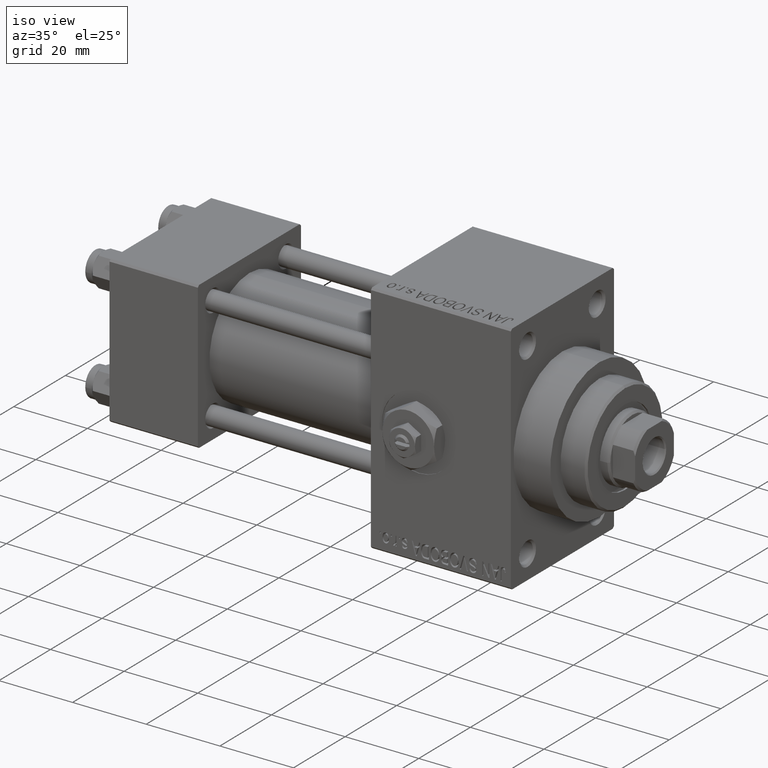
[diagram: clean part render]
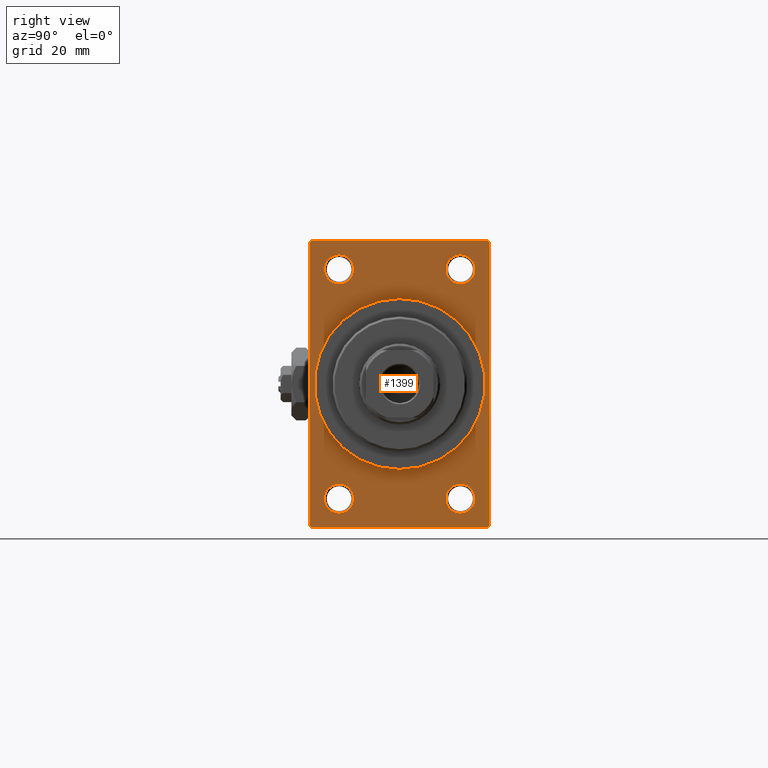
[diagram: tour spotlight — one face highlighted and labeled with its STEP entity id]
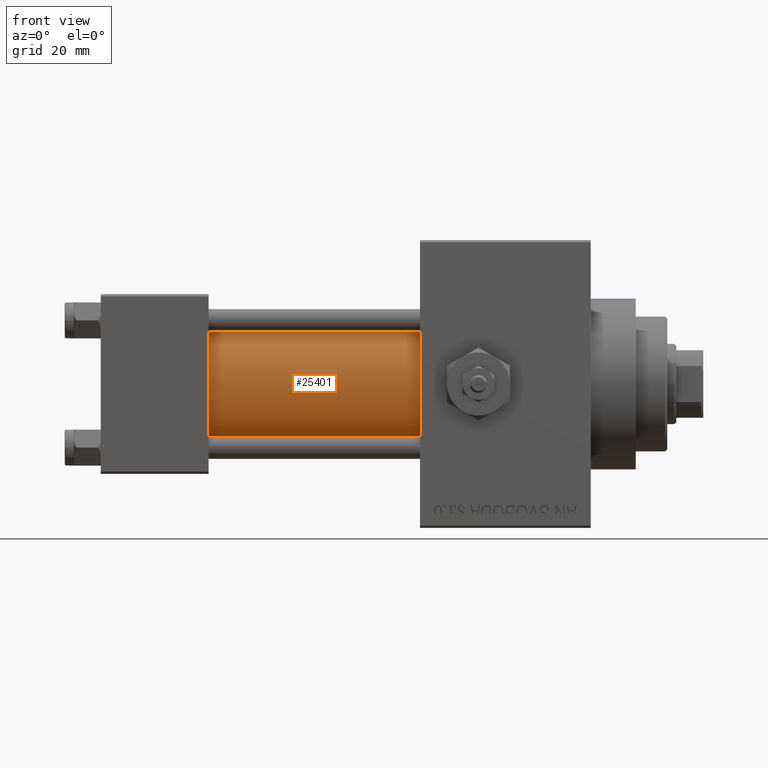
[diagram: tour spotlight — one face highlighted and labeled with its STEP entity id]
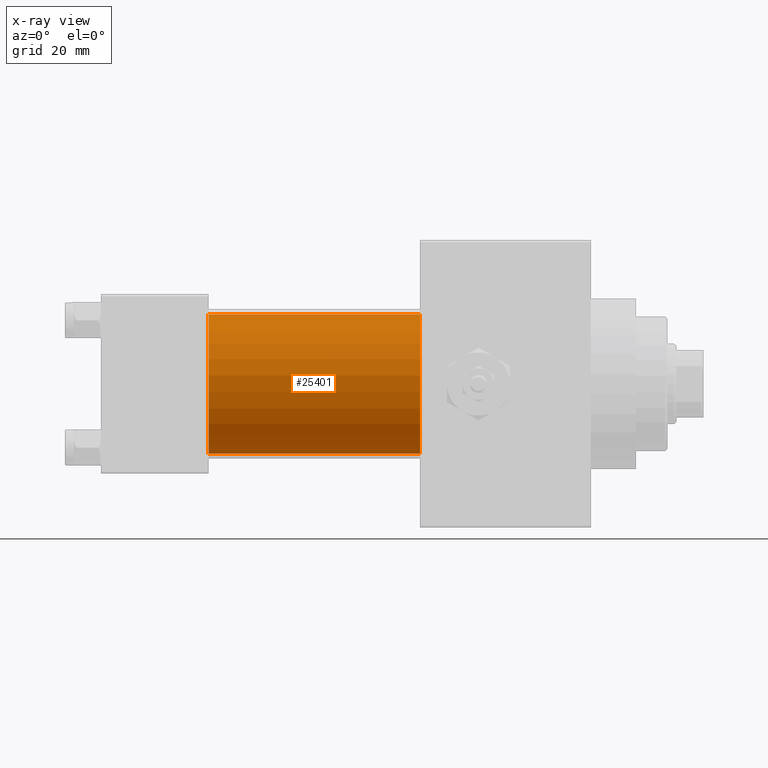
[diagram: x-ray of the same camera — body ghosted, this tour face saturated]
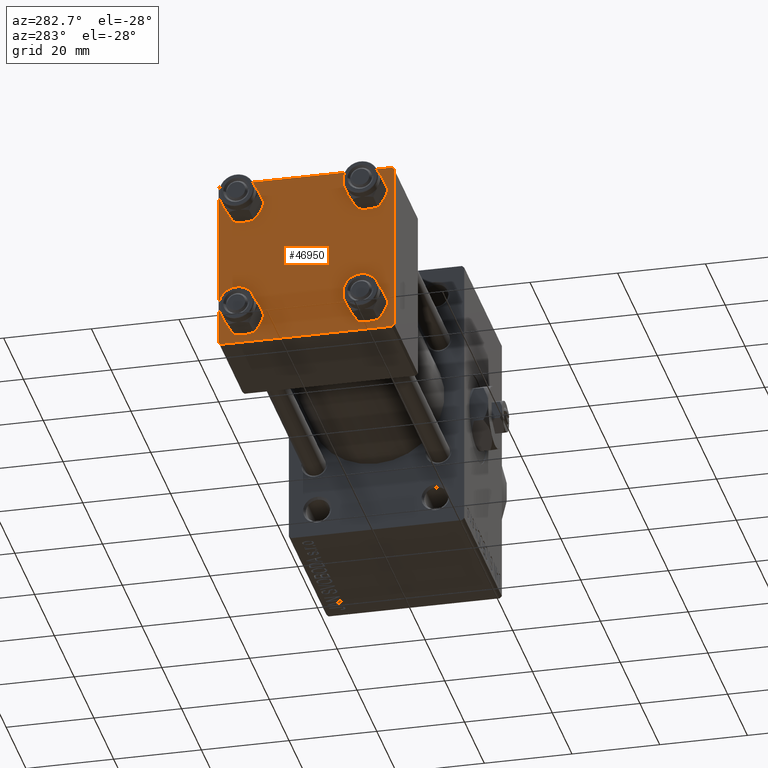
[diagram: tour spotlight — one face highlighted and labeled with its STEP entity id]
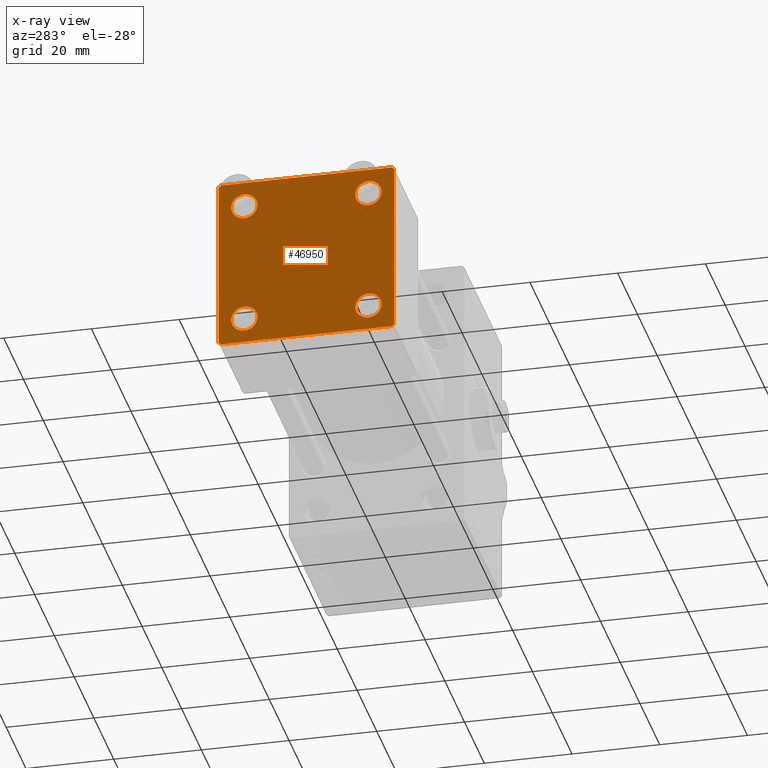
[diagram: x-ray of the same camera — body ghosted, this tour face saturated]
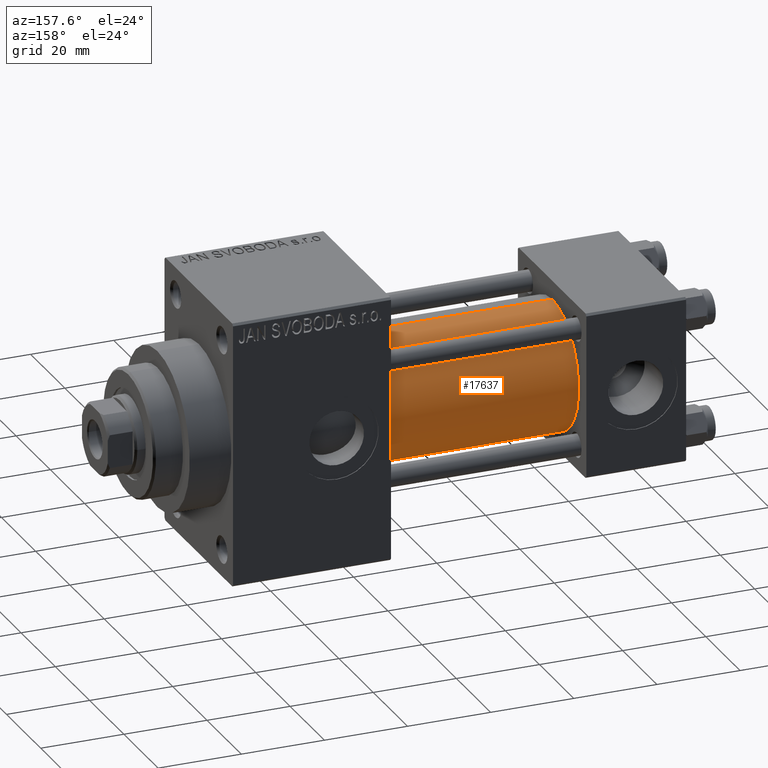
[diagram: tour spotlight — one face highlighted and labeled with its STEP entity id]
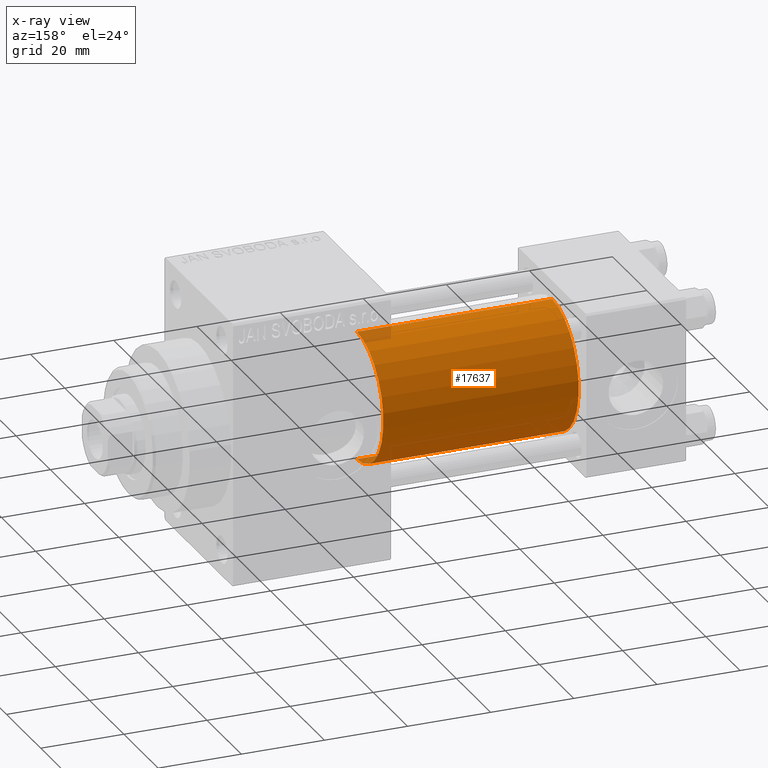
[diagram: x-ray of the same camera — body ghosted, this tour face saturated]
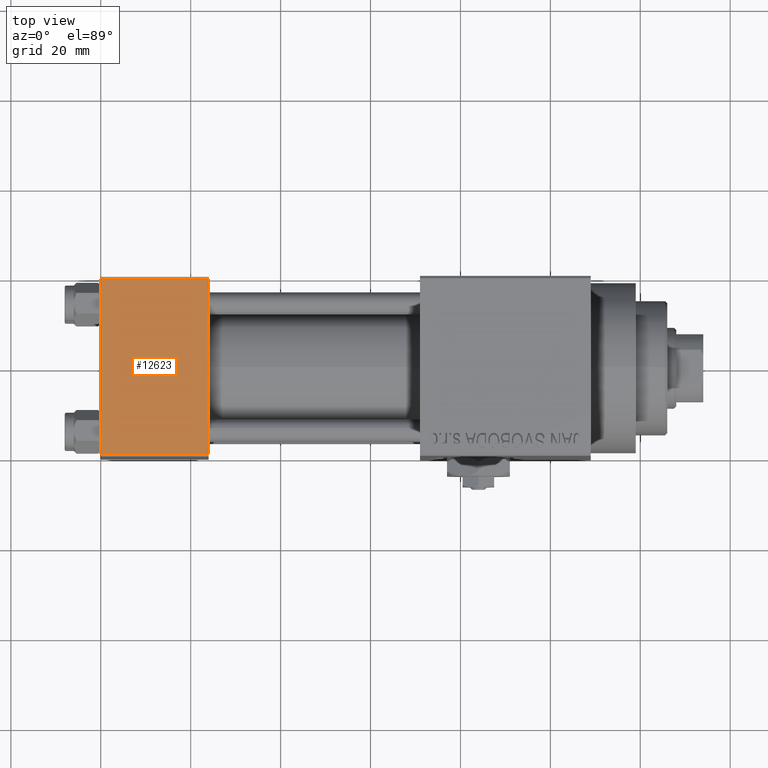
[diagram: tour spotlight — one face highlighted and labeled with its STEP entity id]
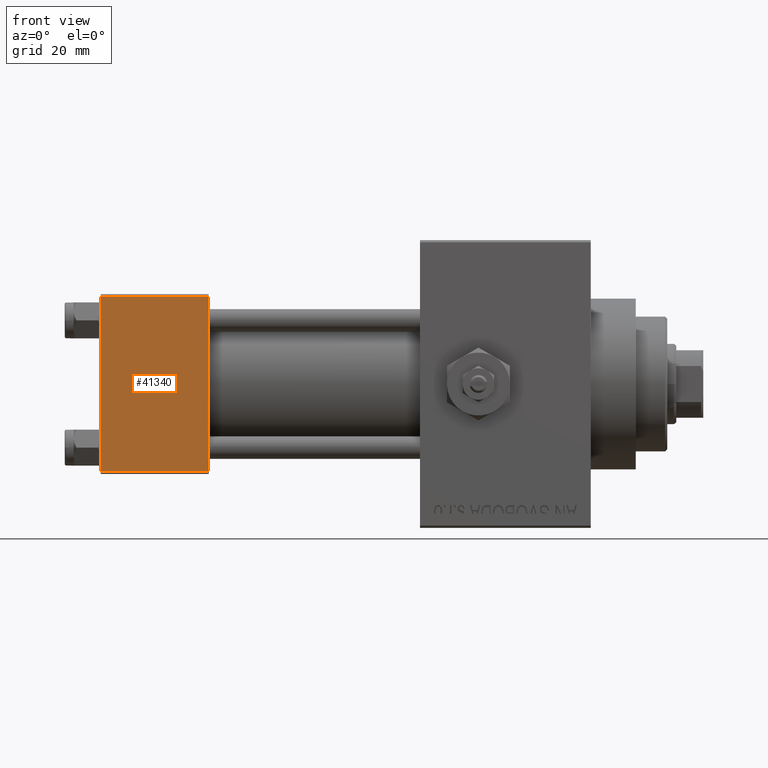
[diagram: tour spotlight — one face highlighted and labeled with its STEP entity id]
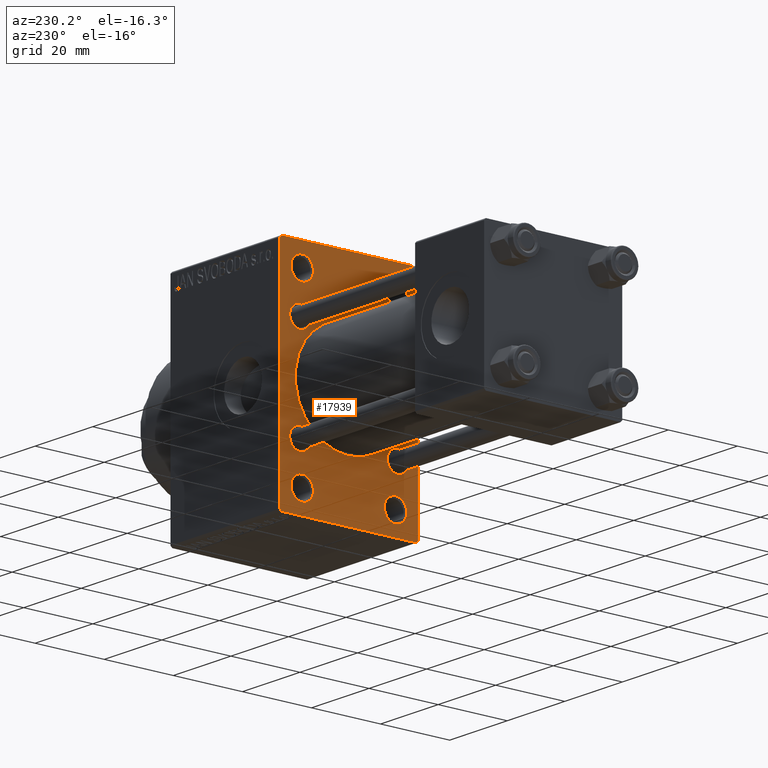
[diagram: tour spotlight — one face highlighted and labeled with its STEP entity id]
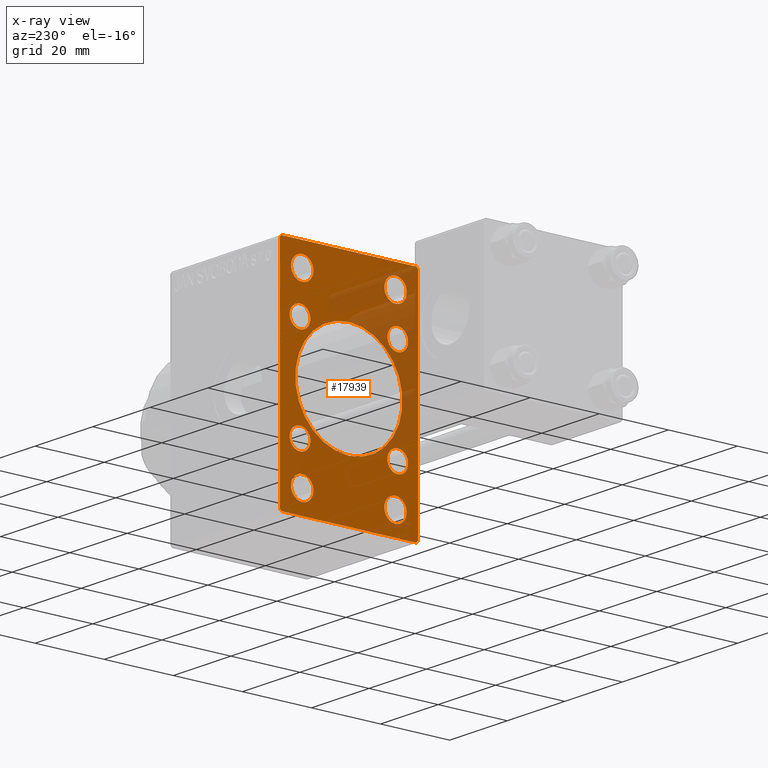
[diagram: x-ray of the same camera — body ghosted, this tour face saturated]
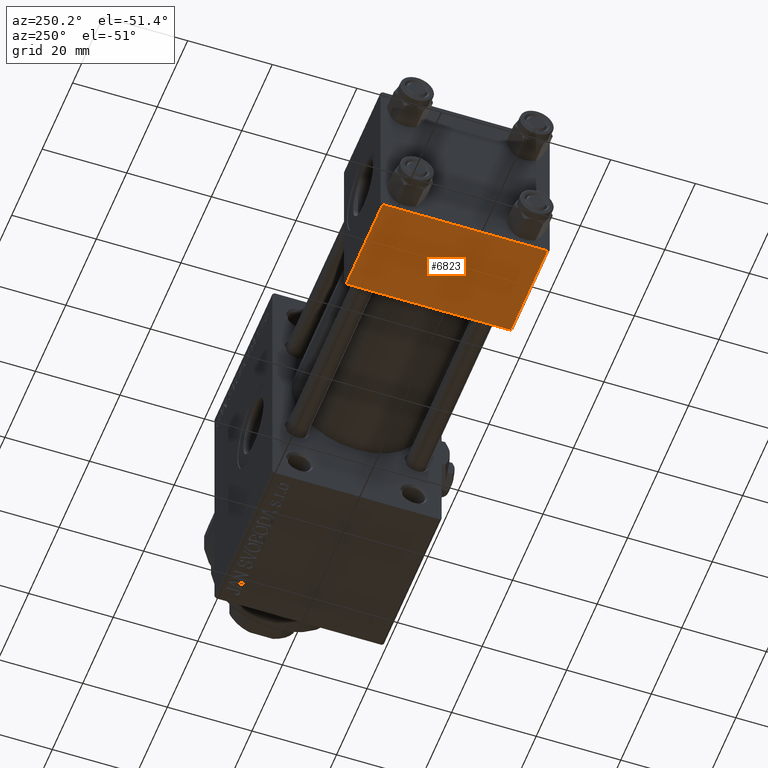
[diagram: tour spotlight — one face highlighted and labeled with its STEP entity id]
A machine part: a face-by-face anatomy tour. The part has 1147 B-rep faces; the first image is the clean iso view, then the 8 largest visible faces are spotlighted one at a time (largest first), each with its STEP entity span.

Face 1 — right view, entity #1399. In plain terms, the highlighted planar face has unit normal (-1, 0, 0).
Definition (entity closure, byte-faithful):
#51 = AXIS2_PLACEMENT_3D ( 'NONE', #47421, #44196, #21087 ) ;
#351 = VERTEX_POINT ( 'NONE', #40277 ) ;
#762 = ORIENTED_EDGE ( 'NONE', *, *, #10213, .F. ) ;
#914 = DIRECTION ( 'NONE',  ( -1.000000000000000000, -0.000000000000000000, -0.000000000000000000 ) ) ;
#1212 = CIRCLE ( 'NONE', #19318, 3.250000000000002665 ) ;
#1399 = ADVANCED_FACE ( 'NONE', ( #40820, #23593, #38595, #41550, #34411, #15979 ), #45739, .F. ) ;
#3025 = VECTOR ( 'NONE', #33355, 1000.000000000000114 ) ;
#3100 = EDGE_CURVE ( 'NONE', #18088, #38992, #37417, .T. ) ;
#3152 = AXIS2_PLACEMENT_3D ( 'NONE', #15236, #4880, #4143 ) ;
#3463 = CARTESIAN_POINT ( 'NONE',  ( 109.0000000000000142, -20.00000000000000000, 31.49999999999997868 ) ) ;
#4111 = EDGE_LOOP ( 'NONE', ( #13555, #36121, #20476, #20197, #30532, #42841, #30334, #37665 ) ) ;
#4143 = DIRECTION ( 'NONE',  ( -0.000000000000000000, 0.000000000000000000, 1.000000000000000000 ) ) ;
#4177 = VERTEX_POINT ( 'NONE', #10072 ) ;
#4880 = DIRECTION ( 'NONE',  ( -1.000000000000000000, 0.000000000000000000, -0.000000000000000000 ) ) ;
#5794 = VERTEX_POINT ( 'NONE', #47217 ) ;
#5797 = CARTESIAN_POINT ( 'NONE',  ( 109.0000000000000142, 20.00000000000000000, -32.00000000000000000 ) ) ;
#5993 = EDGE_CURVE ( 'NONE', #38992, #36361, #39531, .T. ) ;
#6703 = CARTESIAN_POINT ( 'NONE',  ( 109.0000000000000142, 13.49999999999999822, -28.75000000000000000 ) ) ;
#7264 = DIRECTION ( 'NONE',  ( -1.000000000000000000, -0.000000000000000000, -0.000000000000000000 ) ) ;
#7606 = EDGE_CURVE ( 'NONE', #26700, #34077, #40409, .T. ) ;
#7724 = DIRECTION ( 'NONE',  ( 0.000000000000000000, 0.000000000000000000, 1.000000000000000000 ) ) ;
#7843 = CIRCLE ( 'NONE', #47175, 3.250000000000002665 ) ;
#8622 = EDGE_CURVE ( 'NONE', #28753, #29965, #9481, .T. ) ;
#8725 = EDGE_CURVE ( 'NONE', #12981, #33482, #27096, .T. ) ;
#8735 = LINE ( 'NONE', #9212, #33823 ) ;
#9196 = DIRECTION ( 'NONE',  ( -1.000000000000000000, -0.000000000000000000, -0.000000000000000000 ) ) ;
#9212 = CARTESIAN_POINT ( 'NONE',  ( 109.0000000000000142, -19.49999999999998579, -32.00000000000000000 ) ) ;
#9481 = LINE ( 'NONE', #5797, #38884 ) ;
#10072 = CARTESIAN_POINT ( 'NONE',  ( 109.0000000000000142, 20.00000000000000000, -31.49999999999998579 ) ) ;
#10213 = EDGE_CURVE ( 'NONE', #21248, #21968, #35794, .T. ) ;
#10366 = CIRCLE ( 'NONE', #41041, 3.249999999999961364 ) ;
#10453 = EDGE_CURVE ( 'NONE', #33482, #12981, #1212, .T. ) ;
#10640 = EDGE_LOOP ( 'NONE', ( #42338, #13493 ) ) ;
#11766 = CARTESIAN_POINT ( 'NONE',  ( 109.0000000000000142, -20.00000000000000000, -31.49999999999997868 ) ) ;
#12674 = CARTESIAN_POINT ( 'NONE',  ( 109.0000000000000142, 13.49999999999999822, 22.25000000000004263 ) ) ;
#12981 = VERTEX_POINT ( 'NONE', #6703 ) ;
#13001 = EDGE_LOOP ( 'NONE', ( #37644, #27493 ) ) ;
#13036 = DIRECTION ( 'NONE',  ( 0.000000000000000000, 0.000000000000000000, -1.000000000000000000 ) ) ;
#13493 = ORIENTED_EDGE ( 'NONE', *, *, #30262, .T. ) ;
#13555 = ORIENTED_EDGE ( 'NONE', *, *, #5993, .T. ) ;
#13847 = CARTESIAN_POINT ( 'NONE',  ( 109.0000000000000142, -13.50000000000000533, -25.49999999999999645 ) ) ;
#13949 = EDGE_CURVE ( 'NONE', #47721, #18088, #34950, .T. ) ;
#14212 = ORIENTED_EDGE ( 'NONE', *, *, #19874, .T. ) ;
#14386 = EDGE_LOOP ( 'NONE', ( #45246, #47934 ) ) ;
#14446 = CARTESIAN_POINT ( 'NONE',  ( 109.0000000000000142, 13.49999999999999822, 25.50000000000000355 ) ) ;
#14548 = DIRECTION ( 'NONE',  ( 0.000000000000000000, 0.000000000000000000, -1.000000000000000000 ) ) ;
#14783 = CARTESIAN_POINT ( 'NONE',  ( 109.0000000000000142, 19.49999999999998579, 32.00000000000000000 ) ) ;
#14878 = CARTESIAN_POINT ( 'NONE',  ( 109.0000000000000142, 19.49999999999998579, -32.00000000000000000 ) ) ;
#15058 = DIRECTION ( 'NONE',  ( -0.000000000000000000, -0.7071067811865474617, -0.7071067811865474617 ) ) ;
#15236 = CARTESIAN_POINT ( 'NONE',  ( 109.0000000000000142, 0.000000000000000000, 0.000000000000000000 ) ) ;
#15979 = FACE_OUTER_BOUND ( 'NONE', #4111, .T. ) ;
#16421 = CARTESIAN_POINT ( 'NONE',  ( 109.0000000000000142, -20.00000000000000000, 31.99999999999999289 ) ) ;
#16520 = CARTESIAN_POINT ( 'NONE',  ( 109.0000000000000142, 19.49999999999998579, 32.00000000000000000 ) ) ;
#16758 = DIRECTION ( 'NONE',  ( 0.000000000000000000, 0.000000000000000000, 1.000000000000000000 ) ) ;
#16841 = VERTEX_POINT ( 'NONE', #26847 ) ;
#16872 = DIRECTION ( 'NONE',  ( 0.000000000000000000, 0.7071067811865426878, -0.7071067811865524577 ) ) ;
#17163 = CARTESIAN_POINT ( 'NONE',  ( 109.0000000000000142, -20.00000000000000000, 31.49999999999997868 ) ) ;
#17531 = AXIS2_PLACEMENT_3D ( 'NONE', #18113, #7264, #28934 ) ;
#17902 = EDGE_CURVE ( 'NONE', #351, #47721, #45270, .T. ) ;
#18088 = VERTEX_POINT ( 'NONE', #25785 ) ;
#18113 = CARTESIAN_POINT ( 'NONE',  ( 109.0000000000000142, -13.50000000000000178, 25.50000000000000355 ) ) ;
#18344 = EDGE_CURVE ( 'NONE', #28753, #4177, #44674, .T. ) ;
#18345 = VECTOR ( 'NONE', #42239, 1000.000000000000000 ) ;
#18818 = CARTESIAN_POINT ( 'NONE',  ( 109.0000000000000142, 13.49999999999999822, -25.50000000000000000 ) ) ;
#19318 = AXIS2_PLACEMENT_3D ( 'NONE', #38982, #9196, #20292 ) ;
#19874 = EDGE_CURVE ( 'NONE', #34077, #26700, #43089, .T. ) ;
#20096 = AXIS2_PLACEMENT_3D ( 'NONE', #47163, #40246, #32141 ) ;
#20197 = ORIENTED_EDGE ( 'NONE', *, *, #18344, .T. ) ;
#20292 = DIRECTION ( 'NONE',  ( 0.000000000000000000, 0.000000000000000000, 1.000000000000000000 ) ) ;
#20476 = ORIENTED_EDGE ( 'NONE', *, *, #8622, .F. ) ;
#20552 = ORIENTED_EDGE ( 'NONE', *, *, #43875, .F. ) ;
#21087 = DIRECTION ( 'NONE',  ( 0.000000000000000000, 0.000000000000000000, 1.000000000000000000 ) ) ;
#21248 = VERTEX_POINT ( 'NONE', #28986 ) ;
#21968 = VERTEX_POINT ( 'NONE', #24838 ) ;
#22058 = VECTOR ( 'NONE', #14548, 1000.000000000000000 ) ;
#22157 = DIRECTION ( 'NONE',  ( 0.000000000000000000, -0.7071067811865474617, 0.7071067811865474617 ) ) ;
#23593 = FACE_BOUND ( 'NONE', #33813, .T. ) ;
#23636 = DIRECTION ( 'NONE',  ( 0.000000000000000000, -1.000000000000000000, -1.734723475976807094E-16 ) ) ;
#23692 = VERTEX_POINT ( 'NONE', #39198 ) ;
#24838 = CARTESIAN_POINT ( 'NONE',  ( 109.0000000000000142, 2.326828918379970970E-15, -19.00000000000000000 ) ) ;
#24903 = EDGE_CURVE ( 'NONE', #16841, #5794, #7843, .T. ) ;
#25272 = DIRECTION ( 'NONE',  ( 0.000000000000000000, 0.000000000000000000, 1.000000000000000000 ) ) ;
#25785 = CARTESIAN_POINT ( 'NONE',  ( 109.0000000000000142, -19.49999999999998579, 31.99999999999999289 ) ) ;
#26700 = VERTEX_POINT ( 'NONE', #40696 ) ;
#26847 = CARTESIAN_POINT ( 'NONE',  ( 109.0000000000000142, -13.50000000000000178, 22.25000000000000000 ) ) ;
#27096 = CIRCLE ( 'NONE', #45169, 3.250000000000002665 ) ;
#27109 = CARTESIAN_POINT ( 'NONE',  ( 109.0000000000000142, -13.50000000000000533, -22.24999999999999289 ) ) ;
#27434 = ORIENTED_EDGE ( 'NONE', *, *, #7606, .T. ) ;
#27493 = ORIENTED_EDGE ( 'NONE', *, *, #10453, .T. ) ;
#28138 = DIRECTION ( 'NONE',  ( 0.000000000000000000, 0.000000000000000000, 1.000000000000000000 ) ) ;
#28168 = AXIS2_PLACEMENT_3D ( 'NONE', #13847, #39457, #28138 ) ;
#28753 = VERTEX_POINT ( 'NONE', #14878 ) ;
#28934 = DIRECTION ( 'NONE',  ( 0.000000000000000000, 0.000000000000000000, 1.000000000000000000 ) ) ;
#28986 = CARTESIAN_POINT ( 'NONE',  ( 109.0000000000000142, 0.000000000000000000, 19.00000000000000000 ) ) ;
#29199 = DIRECTION ( 'NONE',  ( -1.000000000000000000, -0.000000000000000000, -0.000000000000000000 ) ) ;
#29265 = CIRCLE ( 'NONE', #17531, 3.250000000000002665 ) ;
#29965 = VERTEX_POINT ( 'NONE', #42358 ) ;
#30262 = EDGE_CURVE ( 'NONE', #23692, #31770, #10366, .T. ) ;
#30334 = ORIENTED_EDGE ( 'NONE', *, *, #13949, .T. ) ;
#30532 = ORIENTED_EDGE ( 'NONE', *, *, #46244, .F. ) ;
#30711 = VECTOR ( 'NONE', #15058, 1000.000000000000114 ) ;
#31516 = EDGE_CURVE ( 'NONE', #5794, #16841, #29265, .T. ) ;
#31770 = VERTEX_POINT ( 'NONE', #12674 ) ;
#32141 = DIRECTION ( 'NONE',  ( 0.000000000000000000, 0.000000000000000000, -1.000000000000000000 ) ) ;
#33234 = LINE ( 'NONE', #48253, #22058 ) ;
#33355 = DIRECTION ( 'NONE',  ( -0.000000000000000000, 0.7071067811865474617, 0.7071067811865474617 ) ) ;
#33482 = VERTEX_POINT ( 'NONE', #41737 ) ;
#33812 = DIRECTION ( 'NONE',  ( -1.000000000000000000, -0.000000000000000000, -0.000000000000000000 ) ) ;
#33813 = EDGE_LOOP ( 'NONE', ( #27434, #14212 ) ) ;
#33823 = VECTOR ( 'NONE', #16872, 1000.000000000000000 ) ;
#33900 = EDGE_LOOP ( 'NONE', ( #762, #20552 ) ) ;
#34077 = VERTEX_POINT ( 'NONE', #27109 ) ;
#34411 = FACE_BOUND ( 'NONE', #33900, .T. ) ;
#34579 = AXIS2_PLACEMENT_3D ( 'NONE', #39604, #46743, #13036 ) ;
#34950 = LINE ( 'NONE', #35910, #46925 ) ;
#35195 = CARTESIAN_POINT ( 'NONE',  ( 109.0000000000000142, -13.50000000000000178, 25.50000000000000355 ) ) ;
#35794 = CIRCLE ( 'NONE', #20096, 19.00000000000000000 ) ;
#35816 = DIRECTION ( 'NONE',  ( 0.000000000000000000, -1.000000000000000000, 0.000000000000000000 ) ) ;
#35910 = CARTESIAN_POINT ( 'NONE',  ( 109.0000000000000142, 20.00000000000000000, 32.00000000000000000 ) ) ;
#36121 = ORIENTED_EDGE ( 'NONE', *, *, #46947, .T. ) ;
#36361 = VERTEX_POINT ( 'NONE', #11766 ) ;
#37251 = AXIS2_PLACEMENT_3D ( 'NONE', #41528, #914, #42255 ) ;
#37417 = LINE ( 'NONE', #3463, #30711 ) ;
#37644 = ORIENTED_EDGE ( 'NONE', *, *, #8725, .T. ) ;
#37665 = ORIENTED_EDGE ( 'NONE', *, *, #3100, .T. ) ;
#37773 = CARTESIAN_POINT ( 'NONE',  ( 109.0000000000000142, 20.00000000000000000, -31.49999999999998579 ) ) ;
#38595 = FACE_BOUND ( 'NONE', #13001, .T. ) ;
#38884 = VECTOR ( 'NONE', #35816, 1000.000000000000000 ) ;
#38982 = CARTESIAN_POINT ( 'NONE',  ( 109.0000000000000142, 13.49999999999999822, -25.50000000000000000 ) ) ;
#38992 = VERTEX_POINT ( 'NONE', #17163 ) ;
#39198 = CARTESIAN_POINT ( 'NONE',  ( 109.0000000000000142, 13.49999999999999822, 28.74999999999996803 ) ) ;
#39457 = DIRECTION ( 'NONE',  ( -1.000000000000000000, -0.000000000000000000, -0.000000000000000000 ) ) ;
#39531 = LINE ( 'NONE', #16421, #18345 ) ;
#39604 = CARTESIAN_POINT ( 'NONE',  ( 109.0000000000000142, 0.000000000000000000, 0.000000000000000000 ) ) ;
#40246 = DIRECTION ( 'NONE',  ( 1.000000000000000000, 0.000000000000000000, 0.000000000000000000 ) ) ;
#40277 = CARTESIAN_POINT ( 'NONE',  ( 109.0000000000000142, 20.00000000000000000, 31.49999999999998579 ) ) ;
#40409 = CIRCLE ( 'NONE', #37251, 3.250000000000002665 ) ;
#40696 = CARTESIAN_POINT ( 'NONE',  ( 109.0000000000000142, -13.50000000000000533, -28.74999999999999645 ) ) ;
#40820 = FACE_BOUND ( 'NONE', #14386, .T. ) ;
#41041 = AXIS2_PLACEMENT_3D ( 'NONE', #14446, #29199, #25272 ) ;
#41528 = CARTESIAN_POINT ( 'NONE',  ( 109.0000000000000142, -13.50000000000000533, -25.49999999999999645 ) ) ;
#41550 = FACE_BOUND ( 'NONE', #10640, .T. ) ;
#41737 = CARTESIAN_POINT ( 'NONE',  ( 109.0000000000000142, 13.49999999999999822, -22.24999999999999645 ) ) ;
#42239 = DIRECTION ( 'NONE',  ( 0.000000000000000000, 0.000000000000000000, -1.000000000000000000 ) ) ;
#42255 = DIRECTION ( 'NONE',  ( 0.000000000000000000, 0.000000000000000000, 1.000000000000000000 ) ) ;
#42338 = ORIENTED_EDGE ( 'NONE', *, *, #46880, .T. ) ;
#42345 = VECTOR ( 'NONE', #22157, 1000.000000000000114 ) ;
#42358 = CARTESIAN_POINT ( 'NONE',  ( 109.0000000000000142, -19.49999999999998579, -32.00000000000000000 ) ) ;
#42517 = CIRCLE ( 'NONE', #51, 3.249999999999961364 ) ;
#42583 = DIRECTION ( 'NONE',  ( -1.000000000000000000, -0.000000000000000000, -0.000000000000000000 ) ) ;
#42841 = ORIENTED_EDGE ( 'NONE', *, *, #17902, .T. ) ;
#43089 = CIRCLE ( 'NONE', #28168, 3.250000000000002665 ) ;
#43875 = EDGE_CURVE ( 'NONE', #21968, #21248, #46339, .T. ) ;
#44196 = DIRECTION ( 'NONE',  ( -1.000000000000000000, -0.000000000000000000, -0.000000000000000000 ) ) ;
#44674 = LINE ( 'NONE', #37773, #3025 ) ;
#45169 = AXIS2_PLACEMENT_3D ( 'NONE', #18818, #33812, #7724 ) ;
#45246 = ORIENTED_EDGE ( 'NONE', *, *, #24903, .T. ) ;
#45270 = LINE ( 'NONE', #14783, #42345 ) ;
#45739 = PLANE ( 'NONE',  #3152 ) ;
#46244 = EDGE_CURVE ( 'NONE', #351, #4177, #33234, .T. ) ;
#46339 = CIRCLE ( 'NONE', #34579, 19.00000000000000000 ) ;
#46743 = DIRECTION ( 'NONE',  ( 1.000000000000000000, 0.000000000000000000, 0.000000000000000000 ) ) ;
#46880 = EDGE_CURVE ( 'NONE', #31770, #23692, #42517, .T. ) ;
#46925 = VECTOR ( 'NONE', #23636, 1000.000000000000000 ) ;
#46947 = EDGE_CURVE ( 'NONE', #36361, #29965, #8735, .T. ) ;
#47163 = CARTESIAN_POINT ( 'NONE',  ( 109.0000000000000142, 0.000000000000000000, 0.000000000000000000 ) ) ;
#47175 = AXIS2_PLACEMENT_3D ( 'NONE', #35195, #42583, #16758 ) ;
#47217 = CARTESIAN_POINT ( 'NONE',  ( 109.0000000000000142, -13.50000000000000178, 28.75000000000000355 ) ) ;
#47421 = CARTESIAN_POINT ( 'NONE',  ( 109.0000000000000142, 13.49999999999999822, 25.50000000000000355 ) ) ;
#47721 = VERTEX_POINT ( 'NONE', #16520 ) ;
#47934 = ORIENTED_EDGE ( 'NONE', *, *, #31516, .T. ) ;
#48253 = CARTESIAN_POINT ( 'NONE',  ( 109.0000000000000142, 20.00000000000000000, 32.00000000000000000 ) ) ;

Face 2 — front view, entity #25401. An x-ray twin of the same camera follows (body ghosted, this face saturated) — the face is partly hidden behind the body. In plain terms, the highlighted cylindrical surface (partial cylindrical patch) has radius 15.5 mm, axis along (-1, -0, -0).
Definition (entity closure, byte-faithful):
#950 = VECTOR ( 'NONE', #7836, 1000.000000000000000 ) ;
#2826 = VERTEX_POINT ( 'NONE', #34279 ) ;
#3604 = CARTESIAN_POINT ( 'NONE',  ( 71.00000000000001421, -2.602085213965210642E-15, 15.50000000000000000 ) ) ;
#4577 = VERTEX_POINT ( 'NONE', #3604 ) ;
#5845 = CARTESIAN_POINT ( 'NONE',  ( 24.00000000000000000, -2.602085213965210642E-15, 0.000000000000000000 ) ) ;
#6609 = VERTEX_POINT ( 'NONE', #21607 ) ;
#7035 = DIRECTION ( 'NONE',  ( 0.000000000000000000, 0.000000000000000000, 1.000000000000000000 ) ) ;
#7836 = DIRECTION ( 'NONE',  ( -1.000000000000000000, -0.000000000000000000, -0.000000000000000000 ) ) ;
#8320 = LINE ( 'NONE', #45004, #950 ) ;
#10179 = DIRECTION ( 'NONE',  ( 0.000000000000000000, 0.000000000000000000, -1.000000000000000000 ) ) ;
#11024 = CARTESIAN_POINT ( 'NONE',  ( 71.00000000000001421, -7.038826752868131828E-16, -15.50000000000000000 ) ) ;
#11274 = LINE ( 'NONE', #11024, #45823 ) ;
#11513 = DIRECTION ( 'NONE',  ( -1.000000000000000000, -0.000000000000000000, -0.000000000000000000 ) ) ;
#11607 = CIRCLE ( 'NONE', #35190, 15.50000000000000000 ) ;
#12640 = ORIENTED_EDGE ( 'NONE', *, *, #32326, .F. ) ;
#13249 = DIRECTION ( 'NONE',  ( 1.000000000000000000, 0.000000000000000000, 0.000000000000000000 ) ) ;
#14448 = CARTESIAN_POINT ( 'NONE',  ( 71.00000000000001421, -2.602085213965210642E-15, 0.000000000000000000 ) ) ;
#14603 = VERTEX_POINT ( 'NONE', #35256 ) ;
#16179 = EDGE_CURVE ( 'NONE', #14603, #6609, #11607, .T. ) ;
#17823 = DIRECTION ( 'NONE',  ( 1.000000000000000000, 0.000000000000000000, 0.000000000000000000 ) ) ;
#18912 = CIRCLE ( 'NONE', #28394, 15.50000000000000000 ) ;
#20757 = ORIENTED_EDGE ( 'NONE', *, *, #16179, .T. ) ;
#21607 = CARTESIAN_POINT ( 'NONE',  ( 24.00000000000000000, -7.038826752868131828E-16, -15.50000000000000000 ) ) ;
#21809 = FACE_OUTER_BOUND ( 'NONE', #28461, .T. ) ;
#25401 = ADVANCED_FACE ( 'NONE', ( #21809 ), #48155, .T. ) ;
#28394 = AXIS2_PLACEMENT_3D ( 'NONE', #36750, #17823, #10179 ) ;
#28461 = EDGE_LOOP ( 'NONE', ( #12640, #47566, #47177, #20757 ) ) ;
#29439 = DIRECTION ( 'NONE',  ( -1.000000000000000000, -0.000000000000000000, -0.000000000000000000 ) ) ;
#32326 = EDGE_CURVE ( 'NONE', #2826, #6609, #11274, .T. ) ;
#33022 = AXIS2_PLACEMENT_3D ( 'NONE', #14448, #29439, #7035 ) ;
#33042 = EDGE_CURVE ( 'NONE', #4577, #14603, #8320, .T. ) ;
#34279 = CARTESIAN_POINT ( 'NONE',  ( 71.00000000000001421, -7.038826752868131828E-16, -15.50000000000000000 ) ) ;
#35190 = AXIS2_PLACEMENT_3D ( 'NONE', #5845, #13249, #39568 ) ;
#35256 = CARTESIAN_POINT ( 'NONE',  ( 24.00000000000000000, -2.602085213965210642E-15, 15.50000000000000000 ) ) ;
#36750 = CARTESIAN_POINT ( 'NONE',  ( 71.00000000000001421, -2.602085213965210642E-15, 0.000000000000000000 ) ) ;
#39568 = DIRECTION ( 'NONE',  ( 0.000000000000000000, 0.000000000000000000, 1.000000000000000000 ) ) ;
#45004 = CARTESIAN_POINT ( 'NONE',  ( 71.00000000000001421, -2.602085213965210642E-15, 15.50000000000000000 ) ) ;
#45823 = VECTOR ( 'NONE', #11513, 1000.000000000000000 ) ;
#47010 = EDGE_CURVE ( 'NONE', #4577, #2826, #18912, .T. ) ;
#47177 = ORIENTED_EDGE ( 'NONE', *, *, #33042, .T. ) ;
#47566 = ORIENTED_EDGE ( 'NONE', *, *, #47010, .F. ) ;
#48155 = CYLINDRICAL_SURFACE ( 'NONE', #33022, 15.50000000000000000 ) ;

Face 3 — auxiliary view, entity #46950. An x-ray twin of the same camera follows (body ghosted, this face saturated) — the face is partly hidden behind the body. In plain terms, the highlighted planar face has unit normal (-1, 0, 0).
Definition (entity closure, byte-faithful):
#481 = LINE ( 'NONE', #18980, #17108 ) ;
#576 = CIRCLE ( 'NONE', #28114, 2.999999999999983569 ) ;
#924 = DIRECTION ( 'NONE',  ( 0.000000000000000000, -1.000000000000000000, 1.734723475976807094E-16 ) ) ;
#1081 = VERTEX_POINT ( 'NONE', #41127 ) ;
#1099 = DIRECTION ( 'NONE',  ( -0.000000000000000000, 0.000000000000000000, 1.000000000000000000 ) ) ;
#1458 = ORIENTED_EDGE ( 'NONE', *, *, #42845, .T. ) ;
#2111 = EDGE_CURVE ( 'NONE', #44824, #42578, #12518, .T. ) ;
#2114 = CARTESIAN_POINT ( 'NONE',  ( 0.000000000000000000, -14.14999999999999503, 14.15000000000000391 ) ) ;
#2449 = ORIENTED_EDGE ( 'NONE', *, *, #39785, .T. ) ;
#3194 = CARTESIAN_POINT ( 'NONE',  ( 0.000000000000000000, 19.50000000000000711, -20.00000000000000711 ) ) ;
#3334 = EDGE_CURVE ( 'NONE', #44824, #12815, #20694, .T. ) ;
#3895 = DIRECTION ( 'NONE',  ( 0.000000000000000000, 0.000000000000000000, 1.000000000000000000 ) ) ;
#4126 = CARTESIAN_POINT ( 'NONE',  ( -0.000000000000000000, 19.75000000000013500, 19.74999999999986144 ) ) ;
#4185 = DIRECTION ( 'NONE',  ( 1.000000000000000000, 0.000000000000000000, 0.000000000000000000 ) ) ;
#4386 = DIRECTION ( 'NONE',  ( -0.000000000000000000, 0.7071067811865500152, 0.7071067811865451302 ) ) ;
#4824 = CIRCLE ( 'NONE', #34697, 2.999999999999983569 ) ;
#4926 = CIRCLE ( 'NONE', #10434, 2.999999999999983569 ) ;
#5273 = FACE_BOUND ( 'NONE', #9882, .T. ) ;
#5492 = CARTESIAN_POINT ( 'NONE',  ( 0.000000000000000000, -14.14999999999999503, 14.15000000000000391 ) ) ;
#5670 = AXIS2_PLACEMENT_3D ( 'NONE', #19977, #8157, #11857 ) ;
#6019 = CARTESIAN_POINT ( 'NONE',  ( 0.000000000000000000, 20.00000000000000000, 19.49999999999999289 ) ) ;
#6345 = DIRECTION ( 'NONE',  ( 1.000000000000000000, 0.000000000000000000, 0.000000000000000000 ) ) ;
#6422 = VERTEX_POINT ( 'NONE', #14042 ) ;
#7289 = DIRECTION ( 'NONE',  ( 0.000000000000000000, 8.673617379884036705E-17, -1.000000000000000000 ) ) ;
#7566 = LINE ( 'NONE', #4126, #15782 ) ;
#7787 = VERTEX_POINT ( 'NONE', #10965 ) ;
#8157 = DIRECTION ( 'NONE',  ( 1.000000000000000000, 0.000000000000000000, 0.000000000000000000 ) ) ;
#8277 = VERTEX_POINT ( 'NONE', #41653 ) ;
#8348 = CIRCLE ( 'NONE', #19345, 2.999999999999983569 ) ;
#8698 = DIRECTION ( 'NONE',  ( 0.000000000000000000, 0.000000000000000000, 1.000000000000000000 ) ) ;
#8804 = CARTESIAN_POINT ( 'NONE',  ( 0.000000000000000000, 20.00000000000000000, -20.00000000000000711 ) ) ;
#9009 = CARTESIAN_POINT ( 'NONE',  ( 0.000000000000000000, 14.14999999999999858, 14.15000000000000036 ) ) ;
#9017 = DIRECTION ( 'NONE',  ( 0.000000000000000000, 0.000000000000000000, 1.000000000000000000 ) ) ;
#9262 = ORIENTED_EDGE ( 'NONE', *, *, #27395, .T. ) ;
#9653 = VERTEX_POINT ( 'NONE', #11433 ) ;
#9882 = EDGE_LOOP ( 'NONE', ( #14215, #38865 ) ) ;
#10434 = AXIS2_PLACEMENT_3D ( 'NONE', #2114, #17150, #9017 ) ;
#10579 = DIRECTION ( 'NONE',  ( 0.000000000000000000, 0.000000000000000000, 1.000000000000000000 ) ) ;
#10965 = CARTESIAN_POINT ( 'NONE',  ( 0.000000000000000000, 20.00000000000000000, -19.50000000000002132 ) ) ;
#11078 = CARTESIAN_POINT ( 'NONE',  ( 0.000000000000000000, -14.14999999999999503, 11.15000000000002345 ) ) ;
#11111 = VECTOR ( 'NONE', #46961, 1000.000000000000000 ) ;
#11433 = CARTESIAN_POINT ( 'NONE',  ( 0.000000000000000000, 14.14999999999999858, -11.15000000000001812 ) ) ;
#11567 = EDGE_CURVE ( 'NONE', #6422, #25646, #8348, .T. ) ;
#11675 = ORIENTED_EDGE ( 'NONE', *, *, #32000, .F. ) ;
#11857 = DIRECTION ( 'NONE',  ( 0.000000000000000000, 0.000000000000000000, 1.000000000000000000 ) ) ;
#12518 = LINE ( 'NONE', #23598, #12630 ) ;
#12622 = AXIS2_PLACEMENT_3D ( 'NONE', #31855, #24237, #1099 ) ;
#12630 = VECTOR ( 'NONE', #4386, 1000.000000000000114 ) ;
#12815 = VERTEX_POINT ( 'NONE', #43691 ) ;
#12907 = ORIENTED_EDGE ( 'NONE', *, *, #42611, .T. ) ;
#13149 = EDGE_LOOP ( 'NONE', ( #32473, #2449 ) ) ;
#14042 = CARTESIAN_POINT ( 'NONE',  ( 0.000000000000000000, 14.14999999999999858, 17.14999999999998437 ) ) ;
#14215 = ORIENTED_EDGE ( 'NONE', *, *, #48354, .T. ) ;
#14538 = CARTESIAN_POINT ( 'NONE',  ( 0.000000000000000000, -19.49999999999999289, 19.99999999999998934 ) ) ;
#14645 = CARTESIAN_POINT ( 'NONE',  ( 0.000000000000000000, -19.75000000000020961, -19.74999999999979394 ) ) ;
#14798 = EDGE_CURVE ( 'NONE', #7787, #17845, #481, .T. ) ;
#14938 = CARTESIAN_POINT ( 'NONE',  ( 0.000000000000000000, -14.14999999999999503, -11.15000000000000036 ) ) ;
#15307 = CARTESIAN_POINT ( 'NONE',  ( 0.000000000000000000, 19.50000000000000000, 20.00000000000000000 ) ) ;
#15782 = VECTOR ( 'NONE', #45469, 999.9999999999998863 ) ;
#15859 = AXIS2_PLACEMENT_3D ( 'NONE', #5492, #39461, #8698 ) ;
#16322 = VERTEX_POINT ( 'NONE', #14938 ) ;
#16766 = CARTESIAN_POINT ( 'NONE',  ( 0.000000000000000000, -20.00000000000000355, 19.99999999999998934 ) ) ;
#17086 = EDGE_CURVE ( 'NONE', #25646, #6422, #39153, .T. ) ;
#17108 = VECTOR ( 'NONE', #38151, 1000.000000000000000 ) ;
#17150 = DIRECTION ( 'NONE',  ( 1.000000000000000000, 0.000000000000000000, 0.000000000000000000 ) ) ;
#17845 = VERTEX_POINT ( 'NONE', #3194 ) ;
#18249 = ORIENTED_EDGE ( 'NONE', *, *, #3334, .F. ) ;
#18980 = CARTESIAN_POINT ( 'NONE',  ( -0.000000000000000000, 19.74999999999986855, -19.75000000000014211 ) ) ;
#19080 = CARTESIAN_POINT ( 'NONE',  ( 0.000000000000000000, -14.14999999999999503, 17.14999999999998792 ) ) ;
#19345 = AXIS2_PLACEMENT_3D ( 'NONE', #9009, #39031, #19609 ) ;
#19445 = ORIENTED_EDGE ( 'NONE', *, *, #29959, .T. ) ;
#19609 = DIRECTION ( 'NONE',  ( 0.000000000000000000, 0.000000000000000000, 1.000000000000000000 ) ) ;
#19977 = CARTESIAN_POINT ( 'NONE',  ( 0.000000000000000000, -14.14999999999999503, -14.15000000000000391 ) ) ;
#20380 = LINE ( 'NONE', #8804, #21090 ) ;
#20694 = LINE ( 'NONE', #16766, #31522 ) ;
#21090 = VECTOR ( 'NONE', #924, 1000.000000000000000 ) ;
#21612 = VERTEX_POINT ( 'NONE', #19080 ) ;
#22608 = CARTESIAN_POINT ( 'NONE',  ( 0.000000000000000000, 14.14999999999999858, -14.15000000000000036 ) ) ;
#23598 = CARTESIAN_POINT ( 'NONE',  ( -0.000000000000000000, -19.74999999999992539, 19.75000000000006395 ) ) ;
#24237 = DIRECTION ( 'NONE',  ( -1.000000000000000000, 0.000000000000000000, -0.000000000000000000 ) ) ;
#24490 = FACE_BOUND ( 'NONE', #13149, .T. ) ;
#24497 = CIRCLE ( 'NONE', #15859, 2.999999999999983569 ) ;
#24652 = VERTEX_POINT ( 'NONE', #15307 ) ;
#25198 = ORIENTED_EDGE ( 'NONE', *, *, #46636, .T. ) ;
#25646 = VERTEX_POINT ( 'NONE', #42210 ) ;
#26009 = ORIENTED_EDGE ( 'NONE', *, *, #41278, .T. ) ;
#26033 = ORIENTED_EDGE ( 'NONE', *, *, #14798, .T. ) ;
#26497 = EDGE_LOOP ( 'NONE', ( #12907, #26033, #26009, #9262, #18249, #29394, #11675, #25198 ) ) ;
#27395 = EDGE_CURVE ( 'NONE', #8277, #12815, #37264, .T. ) ;
#28114 = AXIS2_PLACEMENT_3D ( 'NONE', #33890, #4185, #37654 ) ;
#28171 = EDGE_CURVE ( 'NONE', #9653, #1081, #4824, .T. ) ;
#28594 = DIRECTION ( 'NONE',  ( 0.000000000000000000, -1.000000000000000000, -2.602085213965210149E-16 ) ) ;
#28636 = VERTEX_POINT ( 'NONE', #6019 ) ;
#28748 = DIRECTION ( 'NONE',  ( 0.000000000000000000, 0.000000000000000000, 1.000000000000000000 ) ) ;
#29394 = ORIENTED_EDGE ( 'NONE', *, *, #2111, .T. ) ;
#29959 = EDGE_CURVE ( 'NONE', #36888, #16322, #43404, .T. ) ;
#30030 = CARTESIAN_POINT ( 'NONE',  ( 0.000000000000000000, 20.00000000000000000, 20.00000000000000000 ) ) ;
#30668 = EDGE_CURVE ( 'NONE', #42539, #21612, #4926, .T. ) ;
#31034 = CARTESIAN_POINT ( 'NONE',  ( 0.000000000000000000, 14.14999999999999858, 14.15000000000000036 ) ) ;
#31303 = CARTESIAN_POINT ( 'NONE',  ( 0.000000000000000000, 20.00000000000000000, 20.00000000000000000 ) ) ;
#31522 = VECTOR ( 'NONE', #7289, 1000.000000000000000 ) ;
#31855 = CARTESIAN_POINT ( 'NONE',  ( 0.000000000000000000, 0.000000000000000000, 0.000000000000000000 ) ) ;
#32000 = EDGE_CURVE ( 'NONE', #24652, #42578, #38691, .T. ) ;
#32473 = ORIENTED_EDGE ( 'NONE', *, *, #28171, .T. ) ;
#33890 = CARTESIAN_POINT ( 'NONE',  ( 0.000000000000000000, 14.14999999999999858, -14.15000000000000036 ) ) ;
#34040 = CARTESIAN_POINT ( 'NONE',  ( 0.000000000000000000, -14.14999999999999503, -17.15000000000000924 ) ) ;
#34697 = AXIS2_PLACEMENT_3D ( 'NONE', #22608, #41067, #3895 ) ;
#36888 = VERTEX_POINT ( 'NONE', #34040 ) ;
#37264 = LINE ( 'NONE', #14645, #11111 ) ;
#37654 = DIRECTION ( 'NONE',  ( 0.000000000000000000, 0.000000000000000000, 1.000000000000000000 ) ) ;
#38151 = DIRECTION ( 'NONE',  ( -0.000000000000000000, -0.7071067811865524577, -0.7071067811865426878 ) ) ;
#38691 = LINE ( 'NONE', #31303, #48176 ) ;
#38865 = ORIENTED_EDGE ( 'NONE', *, *, #30668, .T. ) ;
#39031 = DIRECTION ( 'NONE',  ( 1.000000000000000000, 0.000000000000000000, 0.000000000000000000 ) ) ;
#39153 = CIRCLE ( 'NONE', #39957, 2.999999999999983569 ) ;
#39245 = FACE_BOUND ( 'NONE', #41705, .T. ) ;
#39461 = DIRECTION ( 'NONE',  ( 1.000000000000000000, 0.000000000000000000, 0.000000000000000000 ) ) ;
#39785 = EDGE_CURVE ( 'NONE', #1081, #9653, #576, .T. ) ;
#39811 = EDGE_LOOP ( 'NONE', ( #41685, #40445 ) ) ;
#39870 = DIRECTION ( 'NONE',  ( 1.000000000000000000, 0.000000000000000000, 0.000000000000000000 ) ) ;
#39957 = AXIS2_PLACEMENT_3D ( 'NONE', #31034, #39870, #10579 ) ;
#40445 = ORIENTED_EDGE ( 'NONE', *, *, #17086, .T. ) ;
#41067 = DIRECTION ( 'NONE',  ( 1.000000000000000000, 0.000000000000000000, 0.000000000000000000 ) ) ;
#41127 = CARTESIAN_POINT ( 'NONE',  ( 0.000000000000000000, 14.14999999999999858, -17.14999999999998437 ) ) ;
#41278 = EDGE_CURVE ( 'NONE', #17845, #8277, #20380, .T. ) ;
#41331 = LINE ( 'NONE', #30030, #41551 ) ;
#41551 = VECTOR ( 'NONE', #45041, 1000.000000000000000 ) ;
#41653 = CARTESIAN_POINT ( 'NONE',  ( 0.000000000000000000, -19.50000000000000711, -20.00000000000000000 ) ) ;
#41685 = ORIENTED_EDGE ( 'NONE', *, *, #11567, .T. ) ;
#41705 = EDGE_LOOP ( 'NONE', ( #1458, #19445 ) ) ;
#42210 = CARTESIAN_POINT ( 'NONE',  ( 0.000000000000000000, 14.14999999999999858, 11.15000000000001990 ) ) ;
#42371 = CIRCLE ( 'NONE', #43944, 3.000000000000004441 ) ;
#42539 = VERTEX_POINT ( 'NONE', #11078 ) ;
#42578 = VERTEX_POINT ( 'NONE', #14538 ) ;
#42611 = EDGE_CURVE ( 'NONE', #28636, #7787, #41331, .T. ) ;
#42845 = EDGE_CURVE ( 'NONE', #16322, #36888, #42371, .T. ) ;
#43040 = CARTESIAN_POINT ( 'NONE',  ( 0.000000000000000000, -14.14999999999999503, -14.15000000000000391 ) ) ;
#43177 = FACE_OUTER_BOUND ( 'NONE', #26497, .T. ) ;
#43404 = CIRCLE ( 'NONE', #5670, 3.000000000000004441 ) ;
#43691 = CARTESIAN_POINT ( 'NONE',  ( 0.000000000000000000, -20.00000000000000000, -19.49999999999999645 ) ) ;
#43944 = AXIS2_PLACEMENT_3D ( 'NONE', #43040, #6345, #28748 ) ;
#44824 = VERTEX_POINT ( 'NONE', #47958 ) ;
#45041 = DIRECTION ( 'NONE',  ( 0.000000000000000000, 0.000000000000000000, -1.000000000000000000 ) ) ;
#45469 = DIRECTION ( 'NONE',  ( 0.000000000000000000, 0.7071067811865425767, -0.7071067811865525687 ) ) ;
#46136 = FACE_BOUND ( 'NONE', #39811, .T. ) ;
#46386 = PLANE ( 'NONE',  #12622 ) ;
#46636 = EDGE_CURVE ( 'NONE', #24652, #28636, #7566, .T. ) ;
#46950 = ADVANCED_FACE ( 'NONE', ( #5273, #39245, #24490, #46136, #43177 ), #46386, .T. ) ;
#46961 = DIRECTION ( 'NONE',  ( 0.000000000000000000, -0.7071067811865401342, 0.7071067811865549002 ) ) ;
#47958 = CARTESIAN_POINT ( 'NONE',  ( 0.000000000000000000, -20.00000000000000355, 19.49999999999998224 ) ) ;
#48176 = VECTOR ( 'NONE', #28594, 1000.000000000000000 ) ;
#48354 = EDGE_CURVE ( 'NONE', #21612, #42539, #24497, .T. ) ;

Face 4 — auxiliary view, entity #17637. An x-ray twin of the same camera follows (body ghosted, this face saturated) — the face is partly hidden behind the body. In plain terms, the highlighted cylindrical surface (partial cylindrical patch) has radius 15.5 mm, axis along (-1, -0, -0).
Definition (entity closure, byte-faithful):
#487 = EDGE_CURVE ( 'NONE', #6609, #14603, #21998, .T. ) ;
#950 = VECTOR ( 'NONE', #7836, 1000.000000000000000 ) ;
#2826 = VERTEX_POINT ( 'NONE', #34279 ) ;
#2989 = AXIS2_PLACEMENT_3D ( 'NONE', #24217, #8711, #32074 ) ;
#3118 = AXIS2_PLACEMENT_3D ( 'NONE', #26243, #22309, #3351 ) ;
#3351 = DIRECTION ( 'NONE',  ( 0.000000000000000000, 0.000000000000000000, 1.000000000000000000 ) ) ;
#3604 = CARTESIAN_POINT ( 'NONE',  ( 71.00000000000001421, -2.602085213965210642E-15, 15.50000000000000000 ) ) ;
#4577 = VERTEX_POINT ( 'NONE', #3604 ) ;
#5658 = CARTESIAN_POINT ( 'NONE',  ( 71.00000000000001421, -2.602085213965210642E-15, 0.000000000000000000 ) ) ;
#6609 = VERTEX_POINT ( 'NONE', #21607 ) ;
#7836 = DIRECTION ( 'NONE',  ( -1.000000000000000000, -0.000000000000000000, -0.000000000000000000 ) ) ;
#8163 = ORIENTED_EDGE ( 'NONE', *, *, #24948, .F. ) ;
#8320 = LINE ( 'NONE', #45004, #950 ) ;
#8711 = DIRECTION ( 'NONE',  ( -1.000000000000000000, -0.000000000000000000, -0.000000000000000000 ) ) ;
#11024 = CARTESIAN_POINT ( 'NONE',  ( 71.00000000000001421, -7.038826752868131828E-16, -15.50000000000000000 ) ) ;
#11274 = LINE ( 'NONE', #11024, #45823 ) ;
#11513 = DIRECTION ( 'NONE',  ( -1.000000000000000000, -0.000000000000000000, -0.000000000000000000 ) ) ;
#12915 = ORIENTED_EDGE ( 'NONE', *, *, #33042, .F. ) ;
#14603 = VERTEX_POINT ( 'NONE', #35256 ) ;
#17083 = FACE_OUTER_BOUND ( 'NONE', #48167, .T. ) ;
#17637 = ADVANCED_FACE ( 'NONE', ( #17083 ), #42680, .T. ) ;
#20467 = ORIENTED_EDGE ( 'NONE', *, *, #32326, .T. ) ;
#20689 = DIRECTION ( 'NONE',  ( 1.000000000000000000, 0.000000000000000000, 0.000000000000000000 ) ) ;
#21607 = CARTESIAN_POINT ( 'NONE',  ( 24.00000000000000000, -7.038826752868131828E-16, -15.50000000000000000 ) ) ;
#21998 = CIRCLE ( 'NONE', #3118, 15.50000000000000000 ) ;
#22309 = DIRECTION ( 'NONE',  ( 1.000000000000000000, 0.000000000000000000, 0.000000000000000000 ) ) ;
#24217 = CARTESIAN_POINT ( 'NONE',  ( 71.00000000000001421, -2.602085213965210642E-15, 0.000000000000000000 ) ) ;
#24948 = EDGE_CURVE ( 'NONE', #2826, #4577, #35365, .T. ) ;
#26243 = CARTESIAN_POINT ( 'NONE',  ( 24.00000000000000000, -2.602085213965210642E-15, 0.000000000000000000 ) ) ;
#32074 = DIRECTION ( 'NONE',  ( 0.000000000000000000, 0.000000000000000000, 1.000000000000000000 ) ) ;
#32179 = ORIENTED_EDGE ( 'NONE', *, *, #487, .T. ) ;
#32326 = EDGE_CURVE ( 'NONE', #2826, #6609, #11274, .T. ) ;
#33042 = EDGE_CURVE ( 'NONE', #4577, #14603, #8320, .T. ) ;
#33771 = AXIS2_PLACEMENT_3D ( 'NONE', #5658, #20689, #36165 ) ;
#34279 = CARTESIAN_POINT ( 'NONE',  ( 71.00000000000001421, -7.038826752868131828E-16, -15.50000000000000000 ) ) ;
#35256 = CARTESIAN_POINT ( 'NONE',  ( 24.00000000000000000, -2.602085213965210642E-15, 15.50000000000000000 ) ) ;
#35365 = CIRCLE ( 'NONE', #33771, 15.50000000000000000 ) ;
#36165 = DIRECTION ( 'NONE',  ( 0.000000000000000000, 0.000000000000000000, -1.000000000000000000 ) ) ;
#42680 = CYLINDRICAL_SURFACE ( 'NONE', #2989, 15.50000000000000000 ) ;
#45004 = CARTESIAN_POINT ( 'NONE',  ( 71.00000000000001421, -2.602085213965210642E-15, 15.50000000000000000 ) ) ;
#45823 = VECTOR ( 'NONE', #11513, 1000.000000000000000 ) ;
#48167 = EDGE_LOOP ( 'NONE', ( #8163, #20467, #32179, #12915 ) ) ;

Face 5 — top view, entity #12623. In plain terms, the highlighted planar face has unit normal (0, 0, -1).
Definition (entity closure, byte-faithful):
#174 = LINE ( 'NONE', #48681, #47781 ) ;
#3157 = VERTEX_POINT ( 'NONE', #27583 ) ;
#3309 = ORIENTED_EDGE ( 'NONE', *, *, #40111, .T. ) ;
#7303 = LINE ( 'NONE', #45443, #10621 ) ;
#9339 = EDGE_CURVE ( 'NONE', #37256, #24652, #7303, .T. ) ;
#10621 = VECTOR ( 'NONE', #26022, 1000.000000000000000 ) ;
#11087 = CARTESIAN_POINT ( 'NONE',  ( 24.00000000000000000, 20.00000000000000000, 20.00000000000000000 ) ) ;
#11568 = DIRECTION ( 'NONE',  ( 0.000000000000000000, -1.000000000000000000, -2.602085213965210149E-16 ) ) ;
#12473 = DIRECTION ( 'NONE',  ( 0.000000000000000000, 1.000000000000000000, 2.602085213965210149E-16 ) ) ;
#12510 = VECTOR ( 'NONE', #11568, 1000.000000000000000 ) ;
#12623 = ADVANCED_FACE ( 'NONE', ( #12727 ), #34373, .F. ) ;
#12727 = FACE_OUTER_BOUND ( 'NONE', #32277, .T. ) ;
#14527 = ORIENTED_EDGE ( 'NONE', *, *, #43661, .F. ) ;
#14538 = CARTESIAN_POINT ( 'NONE',  ( 0.000000000000000000, -19.49999999999999289, 19.99999999999998934 ) ) ;
#15307 = CARTESIAN_POINT ( 'NONE',  ( 0.000000000000000000, 19.50000000000000000, 20.00000000000000000 ) ) ;
#16252 = ORIENTED_EDGE ( 'NONE', *, *, #32000, .T. ) ;
#17537 = CARTESIAN_POINT ( 'NONE',  ( 24.00000000000000000, 19.50000000000000000, 20.00000000000000000 ) ) ;
#22841 = DIRECTION ( 'NONE',  ( 1.000000000000000000, 0.000000000000000000, 0.000000000000000000 ) ) ;
#23555 = CARTESIAN_POINT ( 'NONE',  ( 24.00000000000000000, 20.00000000000000000, 20.00000000000000000 ) ) ;
#24652 = VERTEX_POINT ( 'NONE', #15307 ) ;
#26022 = DIRECTION ( 'NONE',  ( -1.000000000000000000, 0.000000000000000000, 0.000000000000000000 ) ) ;
#27246 = DIRECTION ( 'NONE',  ( 0.000000000000000000, 2.602085213965210149E-16, -1.000000000000000000 ) ) ;
#27583 = CARTESIAN_POINT ( 'NONE',  ( 24.00000000000000000, -19.49999999999999289, 19.99999999999998934 ) ) ;
#28594 = DIRECTION ( 'NONE',  ( 0.000000000000000000, -1.000000000000000000, -2.602085213965210149E-16 ) ) ;
#30268 = LINE ( 'NONE', #11087, #12510 ) ;
#31303 = CARTESIAN_POINT ( 'NONE',  ( 0.000000000000000000, 20.00000000000000000, 20.00000000000000000 ) ) ;
#32000 = EDGE_CURVE ( 'NONE', #24652, #42578, #38691, .T. ) ;
#32277 = EDGE_LOOP ( 'NONE', ( #16252, #3309, #14527, #36358 ) ) ;
#32710 = AXIS2_PLACEMENT_3D ( 'NONE', #23555, #27246, #12473 ) ;
#34373 = PLANE ( 'NONE',  #32710 ) ;
#36358 = ORIENTED_EDGE ( 'NONE', *, *, #9339, .T. ) ;
#37256 = VERTEX_POINT ( 'NONE', #17537 ) ;
#38691 = LINE ( 'NONE', #31303, #48176 ) ;
#40111 = EDGE_CURVE ( 'NONE', #42578, #3157, #174, .T. ) ;
#42578 = VERTEX_POINT ( 'NONE', #14538 ) ;
#43661 = EDGE_CURVE ( 'NONE', #37256, #3157, #30268, .T. ) ;
#45443 = CARTESIAN_POINT ( 'NONE',  ( 0.000000000000000000, 19.50000000000000000, 20.00000000000000000 ) ) ;
#47781 = VECTOR ( 'NONE', #22841, 1000.000000000000000 ) ;
#48176 = VECTOR ( 'NONE', #28594, 1000.000000000000000 ) ;
#48681 = CARTESIAN_POINT ( 'NONE',  ( 24.00000000000000000, -19.49999999999999289, 19.99999999999998934 ) ) ;

Face 6 — front view, entity #41340. In plain terms, the highlighted planar face has unit normal (0, 1, 0).
Definition (entity closure, byte-faithful):
#2053 = CARTESIAN_POINT ( 'NONE',  ( 24.00000000000000000, -20.00000000000000000, -19.49999999999999645 ) ) ;
#3334 = EDGE_CURVE ( 'NONE', #44824, #12815, #20694, .T. ) ;
#5345 = PLANE ( 'NONE',  #35246 ) ;
#5799 = CARTESIAN_POINT ( 'NONE',  ( 24.00000000000000000, -20.00000000000000355, 19.49999999999998224 ) ) ;
#7289 = DIRECTION ( 'NONE',  ( 0.000000000000000000, 8.673617379884036705E-17, -1.000000000000000000 ) ) ;
#7584 = VERTEX_POINT ( 'NONE', #25793 ) ;
#9003 = LINE ( 'NONE', #5799, #35566 ) ;
#12815 = VERTEX_POINT ( 'NONE', #43691 ) ;
#13266 = EDGE_LOOP ( 'NONE', ( #37178, #13793, #41255, #38152 ) ) ;
#13793 = ORIENTED_EDGE ( 'NONE', *, *, #45012, .T. ) ;
#13920 = VECTOR ( 'NONE', #26965, 1000.000000000000000 ) ;
#16446 = FACE_OUTER_BOUND ( 'NONE', #13266, .T. ) ;
#16766 = CARTESIAN_POINT ( 'NONE',  ( 0.000000000000000000, -20.00000000000000355, 19.99999999999998934 ) ) ;
#17082 = DIRECTION ( 'NONE',  ( 1.000000000000000000, 0.000000000000000000, 0.000000000000000000 ) ) ;
#20694 = LINE ( 'NONE', #16766, #31522 ) ;
#23579 = DIRECTION ( 'NONE',  ( -0.000000000000000000, 1.000000000000000000, 8.673617379884036705E-17 ) ) ;
#23826 = CARTESIAN_POINT ( 'NONE',  ( 24.00000000000000000, -20.00000000000000355, 19.99999999999998934 ) ) ;
#25793 = CARTESIAN_POINT ( 'NONE',  ( 24.00000000000000000, -20.00000000000000000, -19.49999999999999645 ) ) ;
#26965 = DIRECTION ( 'NONE',  ( 0.000000000000000000, 8.673617379884036705E-17, -1.000000000000000000 ) ) ;
#27202 = LINE ( 'NONE', #41714, #13920 ) ;
#27268 = DIRECTION ( 'NONE',  ( 0.000000000000000000, -8.673617379884036705E-17, 1.000000000000000000 ) ) ;
#30245 = VERTEX_POINT ( 'NONE', #47909 ) ;
#31522 = VECTOR ( 'NONE', #7289, 1000.000000000000000 ) ;
#34451 = EDGE_CURVE ( 'NONE', #30245, #44824, #9003, .T. ) ;
#35246 = AXIS2_PLACEMENT_3D ( 'NONE', #23826, #23579, #27268 ) ;
#35566 = VECTOR ( 'NONE', #42959, 1000.000000000000000 ) ;
#35683 = EDGE_CURVE ( 'NONE', #30245, #7584, #27202, .T. ) ;
#37178 = ORIENTED_EDGE ( 'NONE', *, *, #3334, .T. ) ;
#38152 = ORIENTED_EDGE ( 'NONE', *, *, #34451, .T. ) ;
#38976 = LINE ( 'NONE', #2053, #45598 ) ;
#41255 = ORIENTED_EDGE ( 'NONE', *, *, #35683, .F. ) ;
#41340 = ADVANCED_FACE ( 'NONE', ( #16446 ), #5345, .F. ) ;
#41714 = CARTESIAN_POINT ( 'NONE',  ( 24.00000000000000000, -20.00000000000000355, 19.99999999999998934 ) ) ;
#42959 = DIRECTION ( 'NONE',  ( -1.000000000000000000, 0.000000000000000000, 0.000000000000000000 ) ) ;
#43691 = CARTESIAN_POINT ( 'NONE',  ( 0.000000000000000000, -20.00000000000000000, -19.49999999999999645 ) ) ;
#44824 = VERTEX_POINT ( 'NONE', #47958 ) ;
#45012 = EDGE_CURVE ( 'NONE', #12815, #7584, #38976, .T. ) ;
#45598 = VECTOR ( 'NONE', #17082, 1000.000000000000000 ) ;
#47909 = CARTESIAN_POINT ( 'NONE',  ( 24.00000000000000000, -20.00000000000000355, 19.49999999999998224 ) ) ;
#47958 = CARTESIAN_POINT ( 'NONE',  ( 0.000000000000000000, -20.00000000000000355, 19.49999999999998224 ) ) ;

Face 7 — auxiliary view, entity #17939. An x-ray twin of the same camera follows (body ghosted, this face saturated) — the face is partly hidden behind the body. In plain terms, the highlighted planar face has unit normal (-1, 0, 0).
Definition (entity closure, byte-faithful):
#64 = DIRECTION ( 'NONE',  ( 0.000000000000000000, 0.000000000000000000, 1.000000000000000000 ) ) ;
#316 = EDGE_CURVE ( 'NONE', #27154, #22093, #22663, .T. ) ;
#326 = ORIENTED_EDGE ( 'NONE', *, *, #36564, .T. ) ;
#772 = CARTESIAN_POINT ( 'NONE',  ( 71.00000000000001421, 14.15000000000000036, -14.15000000000000036 ) ) ;
#921 = CARTESIAN_POINT ( 'NONE',  ( 71.00000000000001421, -20.00000000000000000, -31.49999999999997868 ) ) ;
#998 = CARTESIAN_POINT ( 'NONE',  ( 71.00000000000001421, -20.00000000000000000, 31.49999999999997868 ) ) ;
#1174 = EDGE_LOOP ( 'NONE', ( #7534, #3732 ) ) ;
#1217 = DIRECTION ( 'NONE',  ( 1.000000000000000000, 0.000000000000000000, 0.000000000000000000 ) ) ;
#1365 = VERTEX_POINT ( 'NONE', #17716 ) ;
#1625 = CARTESIAN_POINT ( 'NONE',  ( 71.00000000000001421, -14.15000000000000036, 14.15000000000000036 ) ) ;
#1628 = VERTEX_POINT ( 'NONE', #28724 ) ;
#1813 = CIRCLE ( 'NONE', #29309, 3.250000000000016875 ) ;
#2100 = EDGE_CURVE ( 'NONE', #48209, #25940, #26760, .T. ) ;
#2327 = VECTOR ( 'NONE', #32587, 1000.000000000000000 ) ;
#2826 = VERTEX_POINT ( 'NONE', #34279 ) ;
#2919 = ORIENTED_EDGE ( 'NONE', *, *, #38991, .T. ) ;
#3295 = CARTESIAN_POINT ( 'NONE',  ( 71.00000000000001421, 25.74999999999999645, -25.74999999999999645 ) ) ;
#3579 = CARTESIAN_POINT ( 'NONE',  ( 71.00000000000001421, -13.50000000000000533, -25.49999999999999645 ) ) ;
#3597 = EDGE_CURVE ( 'NONE', #22093, #9914, #24973, .T. ) ;
#3604 = CARTESIAN_POINT ( 'NONE',  ( 71.00000000000001421, -2.602085213965210642E-15, 15.50000000000000000 ) ) ;
#3712 = CIRCLE ( 'NONE', #39869, 3.250000000000016875 ) ;
#3732 = ORIENTED_EDGE ( 'NONE', *, *, #47303, .T. ) ;
#3926 = LINE ( 'NONE', #12064, #37719 ) ;
#4170 = DIRECTION ( 'NONE',  ( 1.000000000000000000, 0.000000000000000000, 0.000000000000000000 ) ) ;
#4394 = VERTEX_POINT ( 'NONE', #36362 ) ;
#4443 = EDGE_CURVE ( 'NONE', #34017, #36371, #32180, .T. ) ;
#4495 = CARTESIAN_POINT ( 'NONE',  ( 71.00000000000001421, 25.74999999999999645, 25.74999999999999645 ) ) ;
#4577 = VERTEX_POINT ( 'NONE', #3604 ) ;
#5146 = DIRECTION ( 'NONE',  ( -0.000000000000000000, 0.000000000000000000, 1.000000000000000000 ) ) ;
#5390 = CARTESIAN_POINT ( 'NONE',  ( 71.00000000000001421, 0.000000000000000000, 0.000000000000000000 ) ) ;
#5590 = CIRCLE ( 'NONE', #12695, 3.000000000000004441 ) ;
#5658 = CARTESIAN_POINT ( 'NONE',  ( 71.00000000000001421, -2.602085213965210642E-15, 0.000000000000000000 ) ) ;
#5718 = ORIENTED_EDGE ( 'NONE', *, *, #32128, .T. ) ;
#6317 = AXIS2_PLACEMENT_3D ( 'NONE', #48465, #14759, #6860 ) ;
#6743 = VERTEX_POINT ( 'NONE', #26517 ) ;
#6860 = DIRECTION ( 'NONE',  ( 0.000000000000000000, 0.000000000000000000, 1.000000000000000000 ) ) ;
#6954 = ORIENTED_EDGE ( 'NONE', *, *, #45401, .F. ) ;
#7456 = AXIS2_PLACEMENT_3D ( 'NONE', #11553, #4170, #7613 ) ;
#7534 = ORIENTED_EDGE ( 'NONE', *, *, #28299, .T. ) ;
#7595 = CARTESIAN_POINT ( 'NONE',  ( 71.00000000000001421, 13.49999999999999822, 22.24999999999998934 ) ) ;
#7613 = DIRECTION ( 'NONE',  ( 0.000000000000000000, 0.000000000000000000, 1.000000000000000000 ) ) ;
#7668 = VECTOR ( 'NONE', #8088, 1000.000000000000114 ) ;
#7704 = EDGE_CURVE ( 'NONE', #25940, #48209, #19209, .T. ) ;
#7730 = CIRCLE ( 'NONE', #35247, 3.000000000000004441 ) ;
#8088 = DIRECTION ( 'NONE',  ( -0.000000000000000000, 0.7071067811865474617, 0.7071067811865474617 ) ) ;
#8179 = AXIS2_PLACEMENT_3D ( 'NONE', #32154, #31677, #21085 ) ;
#8355 = PLANE ( 'NONE',  #21902 ) ;
#8966 = VERTEX_POINT ( 'NONE', #7595 ) ;
#9032 = CARTESIAN_POINT ( 'NONE',  ( 71.00000000000001421, -14.15000000000000036, 11.14999999999999503 ) ) ;
#9910 = VERTEX_POINT ( 'NONE', #37691 ) ;
#9914 = VERTEX_POINT ( 'NONE', #40906 ) ;
#10149 = EDGE_CURVE ( 'NONE', #12228, #6743, #22408, .T. ) ;
#10179 = DIRECTION ( 'NONE',  ( 0.000000000000000000, 0.000000000000000000, -1.000000000000000000 ) ) ;
#10223 = VERTEX_POINT ( 'NONE', #43692 ) ;
#10596 = DIRECTION ( 'NONE',  ( 1.000000000000000000, 0.000000000000000000, 0.000000000000000000 ) ) ;
#11553 = CARTESIAN_POINT ( 'NONE',  ( 71.00000000000001421, -13.50000000000000178, 25.50000000000000355 ) ) ;
#11564 = VERTEX_POINT ( 'NONE', #45932 ) ;
#11650 = CARTESIAN_POINT ( 'NONE',  ( 71.00000000000001421, 14.15000000000000036, -14.15000000000000036 ) ) ;
#12064 = CARTESIAN_POINT ( 'NONE',  ( 71.00000000000001421, 20.00000000000000000, 32.00000000000000000 ) ) ;
#12065 = DIRECTION ( 'NONE',  ( -1.000000000000000000, 0.000000000000000000, -0.000000000000000000 ) ) ;
#12084 = CARTESIAN_POINT ( 'NONE',  ( 71.00000000000001421, 20.00000000000000000, 32.00000000000000000 ) ) ;
#12165 = EDGE_LOOP ( 'NONE', ( #24233, #36507 ) ) ;
#12228 = VERTEX_POINT ( 'NONE', #20661 ) ;
#12380 = LINE ( 'NONE', #4495, #33911 ) ;
#12695 = AXIS2_PLACEMENT_3D ( 'NONE', #23452, #41913, #20246 ) ;
#12724 = ORIENTED_EDGE ( 'NONE', *, *, #47010, .T. ) ;
#12800 = DIRECTION ( 'NONE',  ( 0.000000000000000000, 0.000000000000000000, 1.000000000000000000 ) ) ;
#13029 = FACE_OUTER_BOUND ( 'NONE', #27092, .T. ) ;
#13201 = DIRECTION ( 'NONE',  ( 0.000000000000000000, 0.000000000000000000, 1.000000000000000000 ) ) ;
#13216 = ORIENTED_EDGE ( 'NONE', *, *, #10149, .T. ) ;
#13546 = CIRCLE ( 'NONE', #34764, 3.250000000000016875 ) ;
#13572 = ORIENTED_EDGE ( 'NONE', *, *, #24948, .T. ) ;
#13662 = CARTESIAN_POINT ( 'NONE',  ( 71.00000000000001421, -25.75000000000012790, -25.74999999999977263 ) ) ;
#14041 = ORIENTED_EDGE ( 'NONE', *, *, #38625, .T. ) ;
#14058 = DIRECTION ( 'NONE',  ( 0.000000000000000000, 0.000000000000000000, 1.000000000000000000 ) ) ;
#14068 = VECTOR ( 'NONE', #34154, 1000.000000000000000 ) ;
#14192 = DIRECTION ( 'NONE',  ( 0.000000000000000000, 0.000000000000000000, 1.000000000000000000 ) ) ;
#14759 = DIRECTION ( 'NONE',  ( 1.000000000000000000, 0.000000000000000000, 0.000000000000000000 ) ) ;
#15095 = ORIENTED_EDGE ( 'NONE', *, *, #4443, .F. ) ;
#15795 = ORIENTED_EDGE ( 'NONE', *, *, #33109, .T. ) ;
#16014 = CARTESIAN_POINT ( 'NONE',  ( 71.00000000000001421, -13.50000000000000178, 25.50000000000000355 ) ) ;
#16074 = EDGE_CURVE ( 'NONE', #34017, #23782, #33680, .T. ) ;
#16212 = CARTESIAN_POINT ( 'NONE',  ( 71.00000000000001421, 14.15000000000000036, 14.15000000000000036 ) ) ;
#16462 = ORIENTED_EDGE ( 'NONE', *, *, #23520, .T. ) ;
#16579 = CARTESIAN_POINT ( 'NONE',  ( 71.00000000000001421, -14.15000000000000036, -11.14999999999999680 ) ) ;
#17117 = LINE ( 'NONE', #13662, #2327 ) ;
#17194 = VERTEX_POINT ( 'NONE', #34931 ) ;
#17716 = CARTESIAN_POINT ( 'NONE',  ( 71.00000000000001421, -13.50000000000000533, -28.75000000000001066 ) ) ;
#17823 = DIRECTION ( 'NONE',  ( 1.000000000000000000, 0.000000000000000000, 0.000000000000000000 ) ) ;
#17939 = ADVANCED_FACE ( 'NONE', ( #18959, #33961, #27553, #46008, #31724, #42073, #46733, #23866, #39357, #13029 ), #8355, .T. ) ;
#18152 = ORIENTED_EDGE ( 'NONE', *, *, #2100, .T. ) ;
#18823 = EDGE_LOOP ( 'NONE', ( #2919, #48703 ) ) ;
#18912 = CIRCLE ( 'NONE', #28394, 15.50000000000000000 ) ;
#18920 = AXIS2_PLACEMENT_3D ( 'NONE', #22549, #41249, #19595 ) ;
#18959 = FACE_BOUND ( 'NONE', #35539, .T. ) ;
#19209 = CIRCLE ( 'NONE', #8179, 3.000000000000004441 ) ;
#19214 = ORIENTED_EDGE ( 'NONE', *, *, #22105, .T. ) ;
#19390 = LINE ( 'NONE', #41293, #14068 ) ;
#19595 = DIRECTION ( 'NONE',  ( 0.000000000000000000, 0.000000000000000000, 1.000000000000000000 ) ) ;
#19954 = ORIENTED_EDGE ( 'NONE', *, *, #316, .T. ) ;
#20246 = DIRECTION ( 'NONE',  ( 0.000000000000000000, 0.000000000000000000, 1.000000000000000000 ) ) ;
#20321 = CIRCLE ( 'NONE', #21771, 3.000000000000004441 ) ;
#20362 = DIRECTION ( 'NONE',  ( 0.000000000000000000, 0.000000000000000000, 1.000000000000000000 ) ) ;
#20645 = EDGE_CURVE ( 'NONE', #45744, #1628, #44661, .T. ) ;
#20661 = CARTESIAN_POINT ( 'NONE',  ( 71.00000000000001421, -13.50000000000000178, 22.24999999999998579 ) ) ;
#20689 = DIRECTION ( 'NONE',  ( 1.000000000000000000, 0.000000000000000000, 0.000000000000000000 ) ) ;
#21085 = DIRECTION ( 'NONE',  ( 0.000000000000000000, 0.000000000000000000, 1.000000000000000000 ) ) ;
#21100 = CARTESIAN_POINT ( 'NONE',  ( 71.00000000000001421, 13.49999999999999822, -25.50000000000000000 ) ) ;
#21291 = EDGE_LOOP ( 'NONE', ( #29123, #18152 ) ) ;
#21337 = CIRCLE ( 'NONE', #27638, 3.000000000000004441 ) ;
#21771 = AXIS2_PLACEMENT_3D ( 'NONE', #772, #46310, #39421 ) ;
#21902 = AXIS2_PLACEMENT_3D ( 'NONE', #5390, #12065, #5146 ) ;
#22093 = VERTEX_POINT ( 'NONE', #41055 ) ;
#22105 = EDGE_CURVE ( 'NONE', #9914, #10223, #19390, .T. ) ;
#22408 = CIRCLE ( 'NONE', #7456, 3.250000000000016875 ) ;
#22549 = CARTESIAN_POINT ( 'NONE',  ( 71.00000000000001421, 13.49999999999999822, -25.50000000000000000 ) ) ;
#22663 = LINE ( 'NONE', #12084, #40047 ) ;
#23393 = DIRECTION ( 'NONE',  ( 0.000000000000000000, 0.000000000000000000, -1.000000000000000000 ) ) ;
#23452 = CARTESIAN_POINT ( 'NONE',  ( 71.00000000000001421, 14.15000000000000036, 14.15000000000000036 ) ) ;
#23520 = EDGE_CURVE ( 'NONE', #10223, #36371, #17117, .T. ) ;
#23782 = VERTEX_POINT ( 'NONE', #28608 ) ;
#23866 = FACE_BOUND ( 'NONE', #21291, .T. ) ;
#24233 = ORIENTED_EDGE ( 'NONE', *, *, #33316, .T. ) ;
#24316 = DIRECTION ( 'NONE',  ( 0.000000000000000000, 0.000000000000000000, 1.000000000000000000 ) ) ;
#24948 = EDGE_CURVE ( 'NONE', #2826, #4577, #35365, .T. ) ;
#24959 = CARTESIAN_POINT ( 'NONE',  ( 71.00000000000001421, 19.49999999999998579, 32.00000000000000000 ) ) ;
#24973 = LINE ( 'NONE', #3295, #40933 ) ;
#25038 = EDGE_LOOP ( 'NONE', ( #12724, #13572 ) ) ;
#25351 = CARTESIAN_POINT ( 'NONE',  ( 71.00000000000001421, 20.00000000000000000, 31.49999999999998579 ) ) ;
#25455 = DIRECTION ( 'NONE',  ( -0.000000000000000000, -0.7071067811865474617, -0.7071067811865474617 ) ) ;
#25802 = CARTESIAN_POINT ( 'NONE',  ( 71.00000000000001421, 13.49999999999999822, 28.75000000000002132 ) ) ;
#25940 = VERTEX_POINT ( 'NONE', #16579 ) ;
#26236 = DIRECTION ( 'NONE',  ( 1.000000000000000000, 0.000000000000000000, 0.000000000000000000 ) ) ;
#26465 = EDGE_CURVE ( 'NONE', #47092, #17194, #33059, .T. ) ;
#26517 = CARTESIAN_POINT ( 'NONE',  ( 71.00000000000001421, -13.50000000000000178, 28.75000000000001776 ) ) ;
#26535 = DIRECTION ( 'NONE',  ( 1.000000000000000000, 0.000000000000000000, 0.000000000000000000 ) ) ;
#26687 = CARTESIAN_POINT ( 'NONE',  ( 71.00000000000001421, -14.15000000000000036, -17.15000000000000568 ) ) ;
#26760 = CIRCLE ( 'NONE', #6317, 3.000000000000004441 ) ;
#26837 = CIRCLE ( 'NONE', #40973, 3.000000000000004441 ) ;
#27092 = EDGE_LOOP ( 'NONE', ( #19214, #16462, #15095, #36190, #6954, #47103, #19954, #40835 ) ) ;
#27154 = VERTEX_POINT ( 'NONE', #25351 ) ;
#27553 = FACE_BOUND ( 'NONE', #12165, .T. ) ;
#27608 = VERTEX_POINT ( 'NONE', #29801 ) ;
#27638 = AXIS2_PLACEMENT_3D ( 'NONE', #16212, #38100, #30719 ) ;
#27968 = EDGE_CURVE ( 'NONE', #36745, #27154, #12380, .T. ) ;
#28004 = DIRECTION ( 'NONE',  ( 1.000000000000000000, 0.000000000000000000, 0.000000000000000000 ) ) ;
#28033 = EDGE_CURVE ( 'NONE', #9910, #42598, #26837, .T. ) ;
#28299 = EDGE_CURVE ( 'NONE', #4394, #11564, #21337, .T. ) ;
#28394 = AXIS2_PLACEMENT_3D ( 'NONE', #36750, #17823, #10179 ) ;
#28433 = VECTOR ( 'NONE', #47205, 1000.000000000000000 ) ;
#28608 = CARTESIAN_POINT ( 'NONE',  ( 71.00000000000001421, -19.49999999999998579, 31.99999999999999289 ) ) ;
#28724 = CARTESIAN_POINT ( 'NONE',  ( 71.00000000000001421, -14.15000000000000036, 17.15000000000000568 ) ) ;
#29123 = ORIENTED_EDGE ( 'NONE', *, *, #7704, .T. ) ;
#29309 = AXIS2_PLACEMENT_3D ( 'NONE', #16014, #1217, #12800 ) ;
#29801 = CARTESIAN_POINT ( 'NONE',  ( 71.00000000000001421, -13.50000000000000533, -22.24999999999997868 ) ) ;
#30153 = EDGE_LOOP ( 'NONE', ( #44353, #37317 ) ) ;
#30439 = EDGE_LOOP ( 'NONE', ( #15795, #326 ) ) ;
#30709 = DIRECTION ( 'NONE',  ( 0.000000000000000000, 0.000000000000000000, 1.000000000000000000 ) ) ;
#30719 = DIRECTION ( 'NONE',  ( 0.000000000000000000, 0.000000000000000000, 1.000000000000000000 ) ) ;
#30836 = DIRECTION ( 'NONE',  ( 1.000000000000000000, 0.000000000000000000, 0.000000000000000000 ) ) ;
#31657 = DIRECTION ( 'NONE',  ( 1.000000000000000000, 0.000000000000000000, 0.000000000000000000 ) ) ;
#31677 = DIRECTION ( 'NONE',  ( 1.000000000000000000, 0.000000000000000000, 0.000000000000000000 ) ) ;
#31724 = FACE_BOUND ( 'NONE', #18823, .T. ) ;
#32128 = EDGE_CURVE ( 'NONE', #6743, #12228, #1813, .T. ) ;
#32149 = DIRECTION ( 'NONE',  ( 1.000000000000000000, 0.000000000000000000, 0.000000000000000000 ) ) ;
#32154 = CARTESIAN_POINT ( 'NONE',  ( 71.00000000000001421, -14.15000000000000036, -14.15000000000000036 ) ) ;
#32180 = LINE ( 'NONE', #35638, #28433 ) ;
#32587 = DIRECTION ( 'NONE',  ( 0.000000000000000000, -0.7071067811865426878, 0.7071067811865524577 ) ) ;
#33059 = CIRCLE ( 'NONE', #18920, 3.250000000000016875 ) ;
#33109 = EDGE_CURVE ( 'NONE', #27608, #1365, #44155, .T. ) ;
#33316 = EDGE_CURVE ( 'NONE', #17194, #47092, #13546, .T. ) ;
#33680 = LINE ( 'NONE', #45977, #7668 ) ;
#33771 = AXIS2_PLACEMENT_3D ( 'NONE', #5658, #20689, #36165 ) ;
#33826 = EDGE_LOOP ( 'NONE', ( #14041, #38193 ) ) ;
#33911 = VECTOR ( 'NONE', #45606, 1000.000000000000114 ) ;
#33961 = FACE_BOUND ( 'NONE', #30439, .T. ) ;
#34017 = VERTEX_POINT ( 'NONE', #998 ) ;
#34154 = DIRECTION ( 'NONE',  ( 0.000000000000000000, -1.000000000000000000, 0.000000000000000000 ) ) ;
#34279 = CARTESIAN_POINT ( 'NONE',  ( 71.00000000000001421, -7.038826752868131828E-16, -15.50000000000000000 ) ) ;
#34651 = AXIS2_PLACEMENT_3D ( 'NONE', #40611, #10596, #14058 ) ;
#34695 = DIRECTION ( 'NONE',  ( 0.000000000000000000, -1.000000000000000000, -1.734723475976807094E-16 ) ) ;
#34764 = AXIS2_PLACEMENT_3D ( 'NONE', #21100, #43964, #37070 ) ;
#34931 = CARTESIAN_POINT ( 'NONE',  ( 71.00000000000001421, 13.49999999999999822, -22.24999999999998224 ) ) ;
#35247 = AXIS2_PLACEMENT_3D ( 'NONE', #46920, #32149, #20362 ) ;
#35365 = CIRCLE ( 'NONE', #33771, 15.50000000000000000 ) ;
#35539 = EDGE_LOOP ( 'NONE', ( #5718, #13216 ) ) ;
#35540 = AXIS2_PLACEMENT_3D ( 'NONE', #42767, #28004, #24316 ) ;
#35638 = CARTESIAN_POINT ( 'NONE',  ( 71.00000000000001421, -20.00000000000000000, 31.99999999999999289 ) ) ;
#36165 = DIRECTION ( 'NONE',  ( 0.000000000000000000, 0.000000000000000000, -1.000000000000000000 ) ) ;
#36190 = ORIENTED_EDGE ( 'NONE', *, *, #16074, .T. ) ;
#36362 = CARTESIAN_POINT ( 'NONE',  ( 71.00000000000001421, 14.15000000000000036, 17.15000000000000568 ) ) ;
#36371 = VERTEX_POINT ( 'NONE', #921 ) ;
#36507 = ORIENTED_EDGE ( 'NONE', *, *, #26465, .T. ) ;
#36564 = EDGE_CURVE ( 'NONE', #1365, #27608, #3712, .T. ) ;
#36745 = VERTEX_POINT ( 'NONE', #24959 ) ;
#36750 = CARTESIAN_POINT ( 'NONE',  ( 71.00000000000001421, -2.602085213965210642E-15, 0.000000000000000000 ) ) ;
#37070 = DIRECTION ( 'NONE',  ( 0.000000000000000000, 0.000000000000000000, 1.000000000000000000 ) ) ;
#37317 = ORIENTED_EDGE ( 'NONE', *, *, #41160, .T. ) ;
#37584 = AXIS2_PLACEMENT_3D ( 'NONE', #40804, #26535, #30709 ) ;
#37691 = CARTESIAN_POINT ( 'NONE',  ( 71.00000000000001421, 14.15000000000000036, -17.15000000000000568 ) ) ;
#37719 = VECTOR ( 'NONE', #34695, 1000.000000000000000 ) ;
#38100 = DIRECTION ( 'NONE',  ( 1.000000000000000000, 0.000000000000000000, 0.000000000000000000 ) ) ;
#38193 = ORIENTED_EDGE ( 'NONE', *, *, #28033, .T. ) ;
#38625 = EDGE_CURVE ( 'NONE', #42598, #9910, #20321, .T. ) ;
#38991 = EDGE_CURVE ( 'NONE', #1628, #45744, #7730, .T. ) ;
#39357 = FACE_BOUND ( 'NONE', #25038, .T. ) ;
#39421 = DIRECTION ( 'NONE',  ( 0.000000000000000000, 0.000000000000000000, 1.000000000000000000 ) ) ;
#39869 = AXIS2_PLACEMENT_3D ( 'NONE', #3579, #26236, #14192 ) ;
#39938 = CIRCLE ( 'NONE', #37584, 3.250000000000016875 ) ;
#39962 = CARTESIAN_POINT ( 'NONE',  ( 71.00000000000001421, 13.49999999999999822, -28.75000000000001421 ) ) ;
#40047 = VECTOR ( 'NONE', #23393, 1000.000000000000000 ) ;
#40611 = CARTESIAN_POINT ( 'NONE',  ( 71.00000000000001421, 13.49999999999999822, 25.50000000000000355 ) ) ;
#40804 = CARTESIAN_POINT ( 'NONE',  ( 71.00000000000001421, 13.49999999999999822, 25.50000000000000355 ) ) ;
#40835 = ORIENTED_EDGE ( 'NONE', *, *, #3597, .T. ) ;
#40906 = CARTESIAN_POINT ( 'NONE',  ( 71.00000000000001421, 19.49999999999998579, -32.00000000000000000 ) ) ;
#40933 = VECTOR ( 'NONE', #25455, 1000.000000000000114 ) ;
#40973 = AXIS2_PLACEMENT_3D ( 'NONE', #11650, #30836, #64 ) ;
#41055 = CARTESIAN_POINT ( 'NONE',  ( 71.00000000000001421, 20.00000000000000000, -31.49999999999998579 ) ) ;
#41160 = EDGE_CURVE ( 'NONE', #8966, #47460, #39938, .T. ) ;
#41249 = DIRECTION ( 'NONE',  ( 1.000000000000000000, 0.000000000000000000, 0.000000000000000000 ) ) ;
#41293 = CARTESIAN_POINT ( 'NONE',  ( 71.00000000000001421, 20.00000000000000000, -32.00000000000000000 ) ) ;
#41913 = DIRECTION ( 'NONE',  ( 1.000000000000000000, 0.000000000000000000, 0.000000000000000000 ) ) ;
#42073 = FACE_BOUND ( 'NONE', #1174, .T. ) ;
#42598 = VERTEX_POINT ( 'NONE', #48729 ) ;
#42767 = CARTESIAN_POINT ( 'NONE',  ( 71.00000000000001421, -13.50000000000000533, -25.49999999999999645 ) ) ;
#43692 = CARTESIAN_POINT ( 'NONE',  ( 71.00000000000001421, -19.49999999999998579, -32.00000000000000000 ) ) ;
#43964 = DIRECTION ( 'NONE',  ( 1.000000000000000000, 0.000000000000000000, 0.000000000000000000 ) ) ;
#44155 = CIRCLE ( 'NONE', #35540, 3.250000000000016875 ) ;
#44353 = ORIENTED_EDGE ( 'NONE', *, *, #46213, .T. ) ;
#44622 = AXIS2_PLACEMENT_3D ( 'NONE', #1625, #31657, #13201 ) ;
#44661 = CIRCLE ( 'NONE', #44622, 3.000000000000004441 ) ;
#45401 = EDGE_CURVE ( 'NONE', #36745, #23782, #3926, .T. ) ;
#45606 = DIRECTION ( 'NONE',  ( 0.000000000000000000, 0.7071067811865474617, -0.7071067811865474617 ) ) ;
#45744 = VERTEX_POINT ( 'NONE', #9032 ) ;
#45932 = CARTESIAN_POINT ( 'NONE',  ( 71.00000000000001421, 14.15000000000000036, 11.14999999999999680 ) ) ;
#45977 = CARTESIAN_POINT ( 'NONE',  ( 71.00000000000001421, -25.74999999999998934, 25.74999999999998934 ) ) ;
#46008 = FACE_BOUND ( 'NONE', #30153, .T. ) ;
#46213 = EDGE_CURVE ( 'NONE', #47460, #8966, #47987, .T. ) ;
#46310 = DIRECTION ( 'NONE',  ( 1.000000000000000000, 0.000000000000000000, 0.000000000000000000 ) ) ;
#46733 = FACE_BOUND ( 'NONE', #33826, .T. ) ;
#46920 = CARTESIAN_POINT ( 'NONE',  ( 71.00000000000001421, -14.15000000000000036, 14.15000000000000036 ) ) ;
#47010 = EDGE_CURVE ( 'NONE', #4577, #2826, #18912, .T. ) ;
#47092 = VERTEX_POINT ( 'NONE', #39962 ) ;
#47103 = ORIENTED_EDGE ( 'NONE', *, *, #27968, .T. ) ;
#47205 = DIRECTION ( 'NONE',  ( 0.000000000000000000, 0.000000000000000000, -1.000000000000000000 ) ) ;
#47303 = EDGE_CURVE ( 'NONE', #11564, #4394, #5590, .T. ) ;
#47460 = VERTEX_POINT ( 'NONE', #25802 ) ;
#47987 = CIRCLE ( 'NONE', #34651, 3.250000000000016875 ) ;
#48209 = VERTEX_POINT ( 'NONE', #26687 ) ;
#48465 = CARTESIAN_POINT ( 'NONE',  ( 71.00000000000001421, -14.15000000000000036, -14.15000000000000036 ) ) ;
#48703 = ORIENTED_EDGE ( 'NONE', *, *, #20645, .T. ) ;
#48729 = CARTESIAN_POINT ( 'NONE',  ( 71.00000000000001421, 14.15000000000000036, -11.14999999999999680 ) ) ;

Face 8 — auxiliary view, entity #6823. In plain terms, the highlighted planar face has unit normal (0, -0, -1).
Definition (entity closure, byte-faithful):
#162 = DIRECTION ( 'NONE',  ( 0.000000000000000000, 1.000000000000000000, -1.734723475976806848E-16 ) ) ;
#924 = DIRECTION ( 'NONE',  ( 0.000000000000000000, -1.000000000000000000, 1.734723475976807094E-16 ) ) ;
#1299 = LINE ( 'NONE', #35273, #8648 ) ;
#1720 = EDGE_CURVE ( 'NONE', #36500, #28016, #1299, .T. ) ;
#3194 = CARTESIAN_POINT ( 'NONE',  ( 0.000000000000000000, 19.50000000000000711, -20.00000000000000711 ) ) ;
#5262 = ORIENTED_EDGE ( 'NONE', *, *, #41278, .F. ) ;
#6053 = DIRECTION ( 'NONE',  ( 1.000000000000000000, 0.000000000000000000, 0.000000000000000000 ) ) ;
#6823 = ADVANCED_FACE ( 'NONE', ( #33893 ), #41273, .T. ) ;
#7248 = DIRECTION ( 'NONE',  ( -1.000000000000000000, 0.000000000000000000, 0.000000000000000000 ) ) ;
#7871 = VECTOR ( 'NONE', #6053, 1000.000000000000000 ) ;
#8277 = VERTEX_POINT ( 'NONE', #41653 ) ;
#8648 = VECTOR ( 'NONE', #23476, 1000.000000000000000 ) ;
#8804 = CARTESIAN_POINT ( 'NONE',  ( 0.000000000000000000, 20.00000000000000000, -20.00000000000000711 ) ) ;
#9885 = VECTOR ( 'NONE', #7248, 1000.000000000000000 ) ;
#11749 = EDGE_CURVE ( 'NONE', #28016, #8277, #21534, .T. ) ;
#17845 = VERTEX_POINT ( 'NONE', #3194 ) ;
#18585 = CARTESIAN_POINT ( 'NONE',  ( 0.000000000000000000, -19.50000000000000711, -20.00000000000000000 ) ) ;
#20380 = LINE ( 'NONE', #8804, #21090 ) ;
#21090 = VECTOR ( 'NONE', #924, 1000.000000000000000 ) ;
#21534 = LINE ( 'NONE', #18585, #9885 ) ;
#22580 = CARTESIAN_POINT ( 'NONE',  ( 24.00000000000000000, 20.00000000000000000, -20.00000000000000711 ) ) ;
#23476 = DIRECTION ( 'NONE',  ( 0.000000000000000000, -1.000000000000000000, 1.734723475976807094E-16 ) ) ;
#23936 = AXIS2_PLACEMENT_3D ( 'NONE', #22580, #37579, #162 ) ;
#24519 = EDGE_LOOP ( 'NONE', ( #5262, #45019, #41070, #45634 ) ) ;
#24554 = CARTESIAN_POINT ( 'NONE',  ( 24.00000000000000000, 19.50000000000000711, -20.00000000000000711 ) ) ;
#28016 = VERTEX_POINT ( 'NONE', #37480 ) ;
#33893 = FACE_OUTER_BOUND ( 'NONE', #24519, .T. ) ;
#35273 = CARTESIAN_POINT ( 'NONE',  ( 24.00000000000000000, 20.00000000000000000, -20.00000000000000711 ) ) ;
#36500 = VERTEX_POINT ( 'NONE', #24554 ) ;
#36801 = LINE ( 'NONE', #48135, #7871 ) ;
#37480 = CARTESIAN_POINT ( 'NONE',  ( 24.00000000000000000, -19.50000000000000711, -20.00000000000000000 ) ) ;
#37579 = DIRECTION ( 'NONE',  ( 0.000000000000000000, -1.734723475976806848E-16, -1.000000000000000000 ) ) ;
#41070 = ORIENTED_EDGE ( 'NONE', *, *, #1720, .T. ) ;
#41273 = PLANE ( 'NONE',  #23936 ) ;
#41278 = EDGE_CURVE ( 'NONE', #17845, #8277, #20380, .T. ) ;
#41653 = CARTESIAN_POINT ( 'NONE',  ( 0.000000000000000000, -19.50000000000000711, -20.00000000000000000 ) ) ;
#45019 = ORIENTED_EDGE ( 'NONE', *, *, #45901, .T. ) ;
#45634 = ORIENTED_EDGE ( 'NONE', *, *, #11749, .T. ) ;
#45901 = EDGE_CURVE ( 'NONE', #17845, #36500, #36801, .T. ) ;
#48135 = CARTESIAN_POINT ( 'NONE',  ( 24.00000000000000000, 19.50000000000000711, -20.00000000000000711 ) ) ;